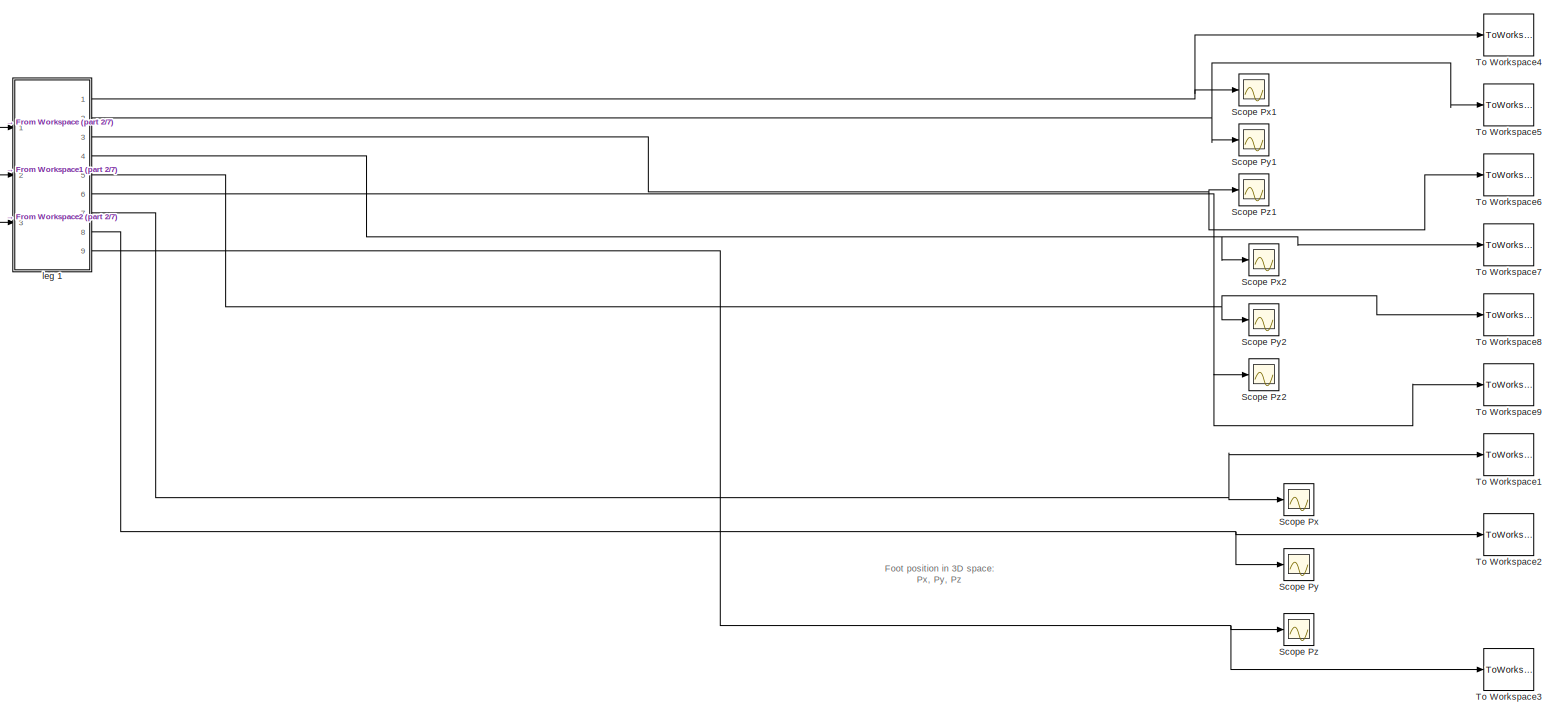
[diagram: root canvas - part 1/7, top right region]
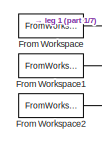
[diagram: root canvas - part 2/7, top left region]
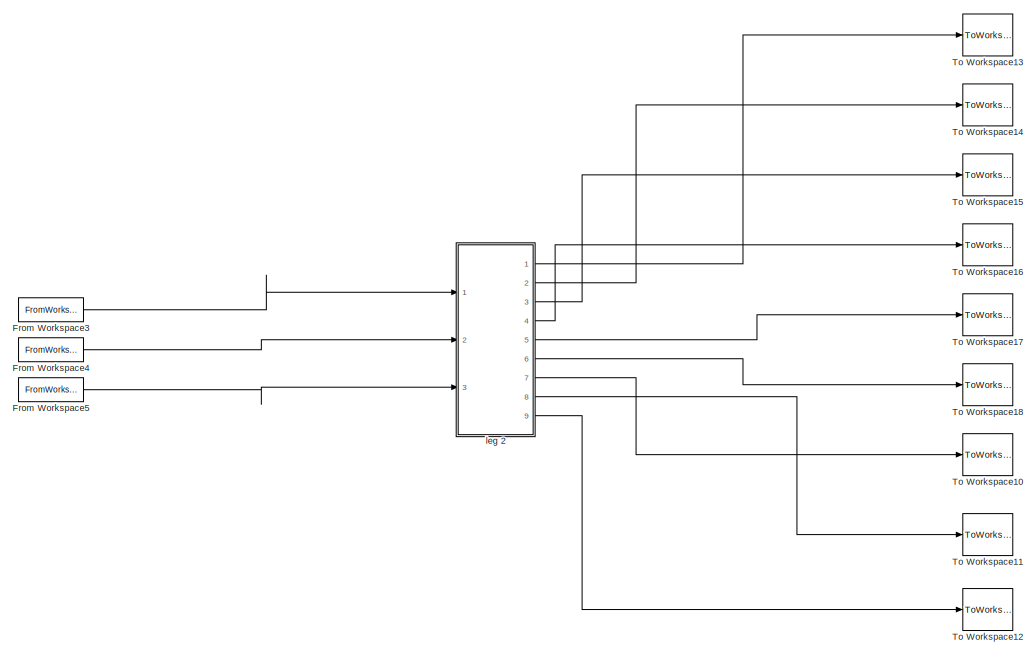
[diagram: root canvas - part 3/7, top center region]
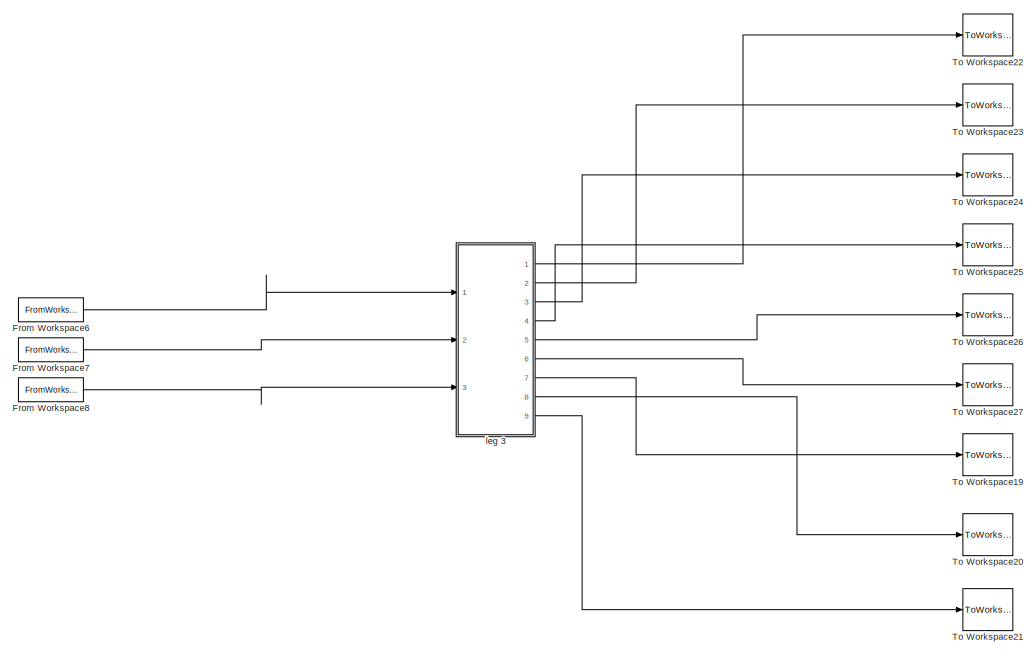
[diagram: root canvas - part 4/7, central region]
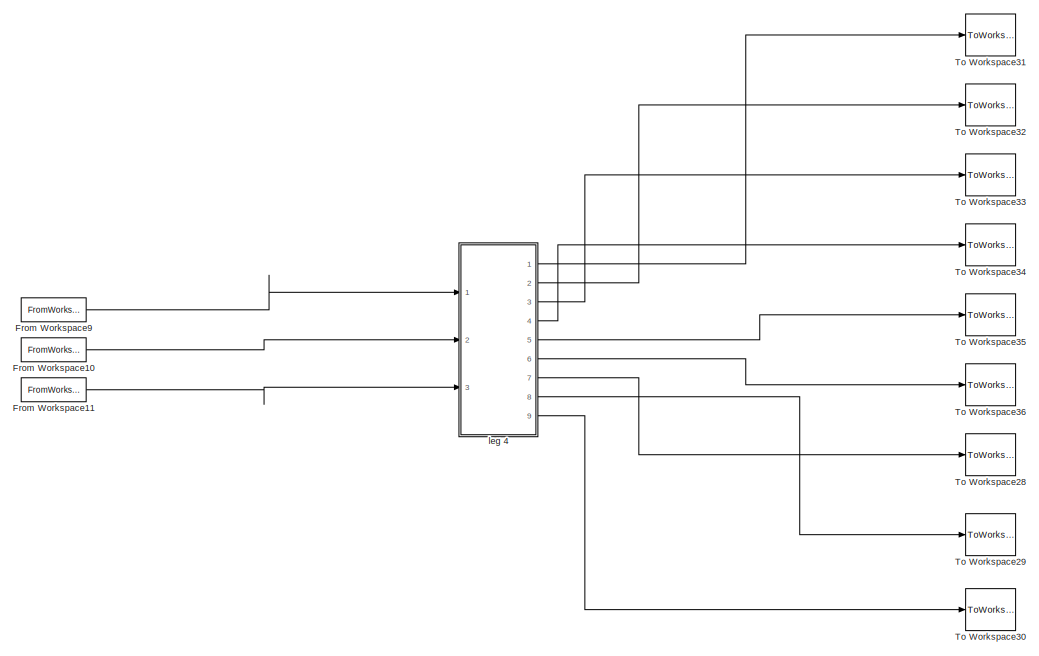
[diagram: root canvas - part 5/7, central region]
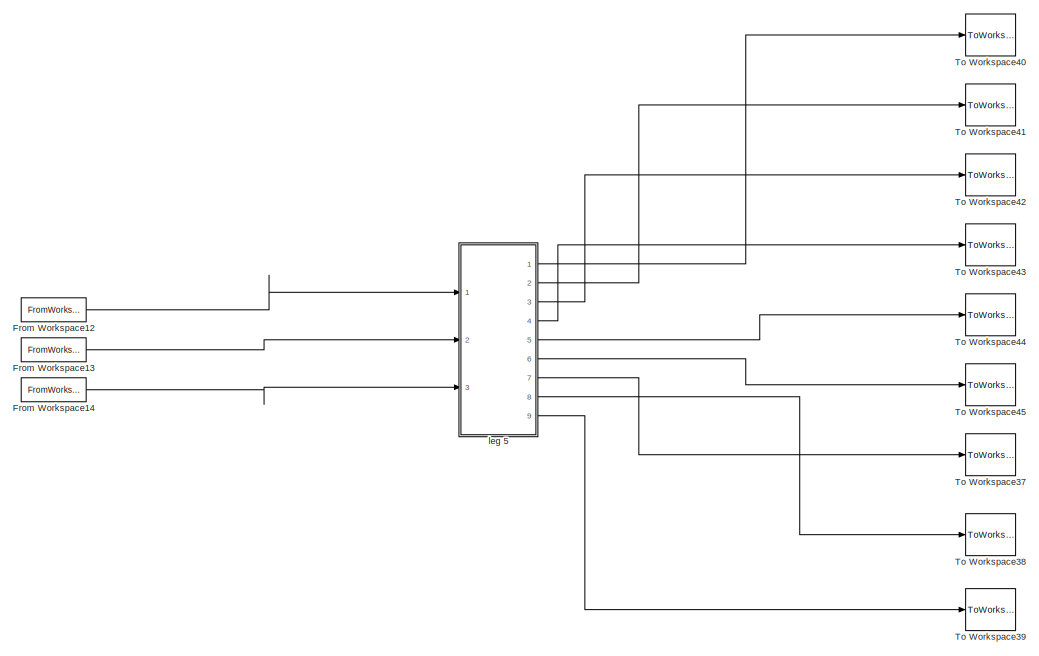
[diagram: root canvas - part 6/7, bottom center region]
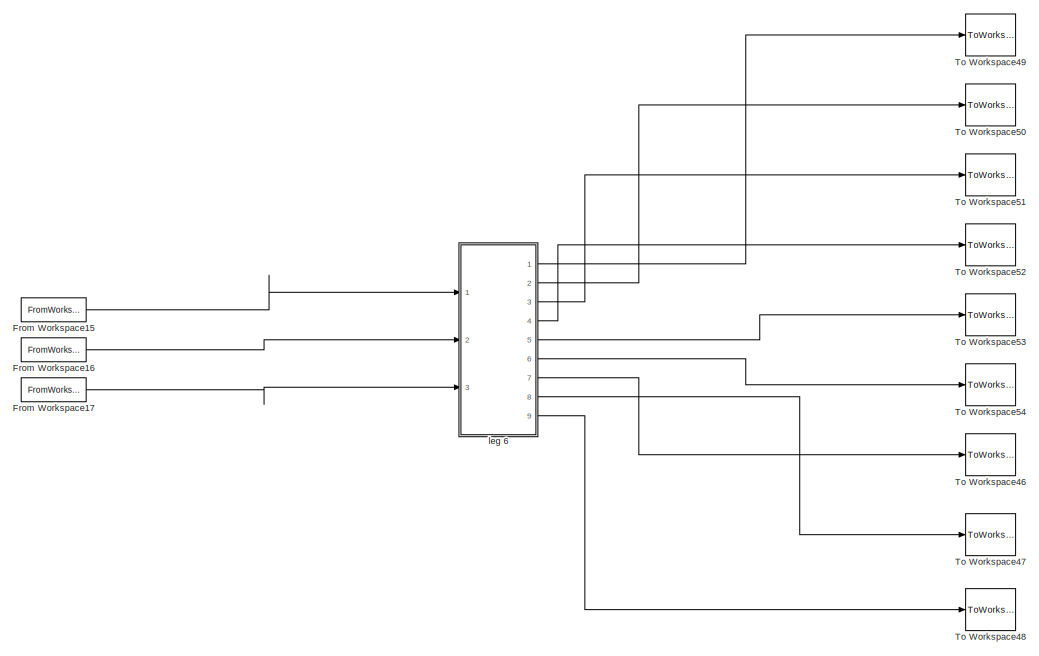
[diagram: root canvas - part 7/7, bottom center region]
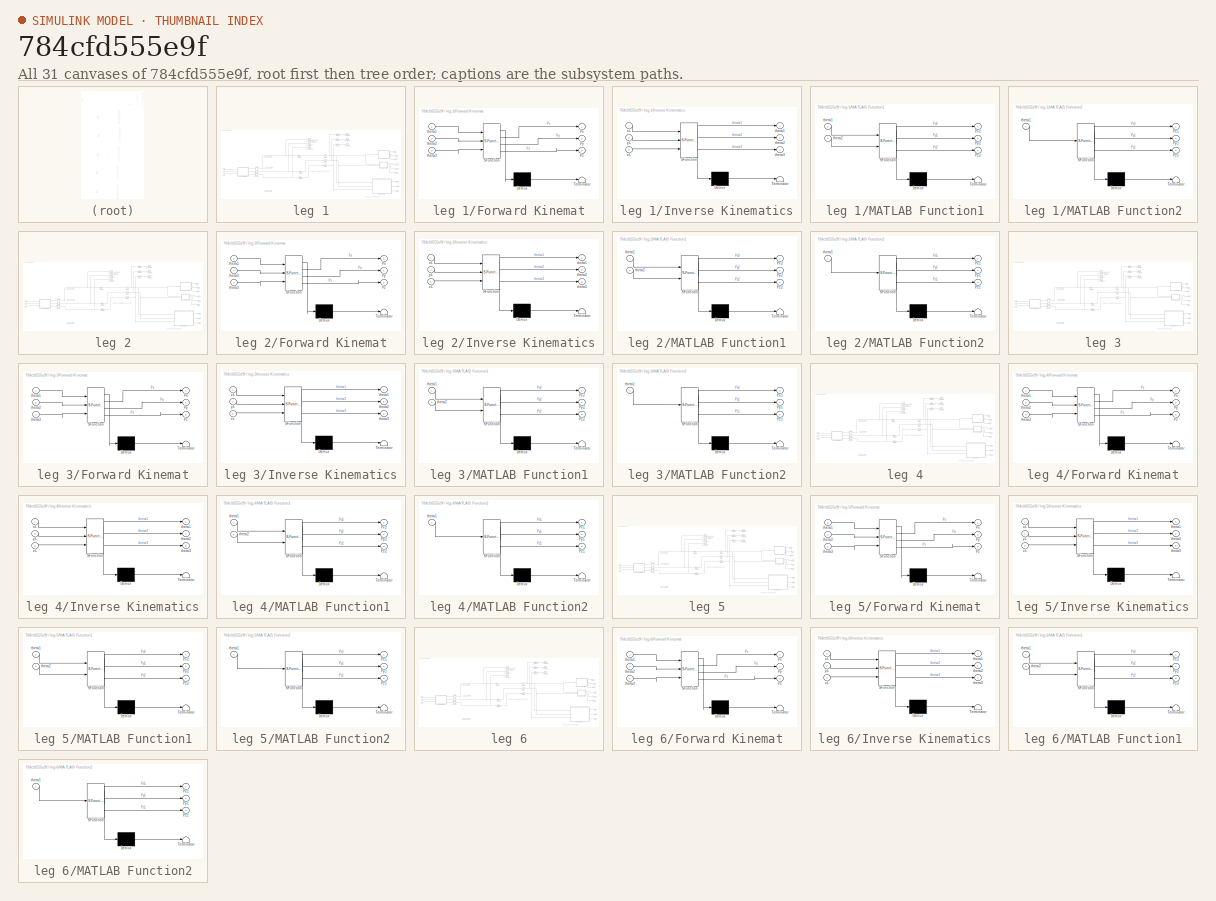
[diagram: thumbnail index - all 31 canvases of the model, root first then tree order]
MODEL slx_784cfd555e9f
KIND model
CONFIG AbsTol = auto
CONFIG EnableMultiTasking = off
CONFIG FixedStep = auto
CONFIG MaxStep = auto
CONFIG MinStep = auto
CONFIG RelTol = 1e-3
CONFIG SampleTimeConstraint = Unconstrained
CONFIG Solver = VariableStepAuto
CONFIG SolverName = VariableStepAuto
CONFIG StartTime = 0.0
CONFIG StopTime = 10.0
BLOCK [FromWorkspace] From Workspace
  SampleTime = 1
  VariableName = xpl1
BLOCK [FromWorkspace] From Workspace1
  SampleTime = 1
  VariableName = ypl1
BLOCK [FromWorkspace] From Workspace10
  SampleTime = 1
  VariableName = ypl4
BLOCK [FromWorkspace] From Workspace11
  SampleTime = 1
  VariableName = zpl4
BLOCK [FromWorkspace] From Workspace12
  SampleTime = 1
  VariableName = xpl5
BLOCK [FromWorkspace] From Workspace13
  SampleTime = 1
  VariableName = ypl5
BLOCK [FromWorkspace] From Workspace14
  SampleTime = 1
  VariableName = zpl5
BLOCK [FromWorkspace] From Workspace15
  SampleTime = 1
  VariableName = xpl6
BLOCK [FromWorkspace] From Workspace16
  SampleTime = 1
  VariableName = ypl6
BLOCK [FromWorkspace] From Workspace17
  SampleTime = 1
  VariableName = zpl6
BLOCK [FromWorkspace] From Workspace2
  SampleTime = 1
  VariableName = zpl1
BLOCK [FromWorkspace] From Workspace3
  SampleTime = 1
  VariableName = xpl2
BLOCK [FromWorkspace] From Workspace4
  SampleTime = 1
  VariableName = ypl2
BLOCK [FromWorkspace] From Workspace5
  SampleTime = 1
  VariableName = zpl2
BLOCK [FromWorkspace] From Workspace6
  SampleTime = 1
  VariableName = xpl3
BLOCK [FromWorkspace] From Workspace7
  SampleTime = 1
  VariableName = ypl3
BLOCK [FromWorkspace] From Workspace8
  SampleTime = 1
  VariableName = zpl3
BLOCK [FromWorkspace] From Workspace9
  SampleTime = 1
  VariableName = xpl4
BLOCK [Scope] Scope Px
  Floating = off
  NumInputPorts = 1
  Ports = [1]
  ScopeSpecificationString = Simulink.scopes.TimeScopeBlockCfg('CurrentConfiguration', extmgr.ConfigurationSet(extmgr.Configuration('Core','General UI',true),extmgr.Configuration('Core','Source UI',true),extmgr.Configuration('Sources','WiredSimulink',true,'DataLoggingVariableName','ScopeData1'),extmgr.Configuration('Visuals','Time Domain',true,'SerializedDisplays',{struct('MinYLimReal','61.96','MaxYLimReal','186.96','YLabelRe...<+1392ch>
BLOCK [Scope] Scope Px1
  Floating = off
  NumInputPorts = 1
  Ports = [1]
  ScopeSpecificationString = Simulink.scopes.TimeScopeBlockCfg('CurrentConfiguration', extmgr.ConfigurationSet(extmgr.Configuration('Core','General UI',true),extmgr.Configuration('Core','Source UI',true),extmgr.Configuration('Sources','WiredSimulink',true,'DataLoggingVariableName','ScopeData9'),extmgr.Configuration('Visuals','Time Domain',true,'SerializedDisplays',{struct('MinYLimReal','43.17','MaxYLimReal','63.17','YLabelRea...<+1361ch>
BLOCK [Scope] Scope Px2
  Floating = off
  NumInputPorts = 1
  Ports = [1]
  ScopeSpecificationString = Simulink.scopes.TimeScopeBlockCfg('CurrentConfiguration', extmgr.ConfigurationSet(extmgr.Configuration('Core','General UI',true),extmgr.Configuration('Core','Source UI',true),extmgr.Configuration('Sources','WiredSimulink',true,'DataLoggingVariableName','ScopeData12'),extmgr.Configuration('Visuals','Time Domain',true,'SerializedDisplays',{struct('MinYLimReal','144.76801','MaxYLimReal','156.19238','...<+1394ch>
BLOCK [Scope] Scope Py
  Floating = off
  NumInputPorts = 1
  Ports = [1]
  ScopeSpecificationString = Simulink.scopes.TimeScopeBlockCfg('CurrentConfiguration', extmgr.ConfigurationSet(extmgr.Configuration('Core','General UI',true),extmgr.Configuration('Core','Source UI',true),extmgr.Configuration('Sources','WiredSimulink',true,'DataLoggingVariableName','ScopeData2'),extmgr.Configuration('Visuals','Time Domain',true,'SerializedDisplays',{struct('MinYLimReal','-0.000000000000008','MaxYLimReal','0.00...<+1486ch>
BLOCK [Scope] Scope Py1
  Floating = off
  NumInputPorts = 1
  Ports = [1]
  ScopeSpecificationString = Simulink.scopes.TimeScopeBlockCfg('CurrentConfiguration', extmgr.ConfigurationSet(extmgr.Configuration('Core','General UI',true),extmgr.Configuration('Core','Source UI',true),extmgr.Configuration('Sources','WiredSimulink',true,'DataLoggingVariableName','ScopeData10'),extmgr.Configuration('Visuals','Time Domain',true,'SerializedDisplays',{struct('MinYLimReal','-0.0000000000000026','MaxYLimReal','0....<+1497ch>
BLOCK [Scope] Scope Py2
  Floating = off
  NumInputPorts = 1
  Ports = [1]
  ScopeSpecificationString = Simulink.scopes.TimeScopeBlockCfg('CurrentConfiguration', extmgr.ConfigurationSet(extmgr.Configuration('Core','General UI',true),extmgr.Configuration('Core','Source UI',true),extmgr.Configuration('Sources','WiredSimulink',true,'DataLoggingVariableName','ScopeData13'),extmgr.Configuration('Visuals','Time Domain',true,'SerializedDisplays',{struct('MinYLimReal','-0.000000000000008','MaxYLimReal','0.0...<+1489ch>
BLOCK [Scope] Scope Pz
  Floating = off
  NumInputPorts = 1
  Ports = [1]
  ScopeSpecificationString = Simulink.scopes.TimeScopeBlockCfg('CurrentConfiguration', extmgr.ConfigurationSet(extmgr.Configuration('Core','General UI',true),extmgr.Configuration('Core','Source UI',true),extmgr.Configuration('Sources','WiredSimulink',true,'DataLoggingVariableName','ScopeData3'),extmgr.Configuration('Visuals','Time Domain',true,'SerializedDisplays',{struct('MinYLimReal','-145.13374','MaxYLimReal','-93.7963','Y...<+1389ch>
BLOCK [Scope] Scope Pz1
  Floating = off
  NumInputPorts = 1
  Ports = [1]
  ScopeSpecificationString = Simulink.scopes.TimeScopeBlockCfg('CurrentConfiguration', extmgr.ConfigurationSet(extmgr.Configuration('Core','General UI',true),extmgr.Configuration('Core','Source UI',true),extmgr.Configuration('Sources','WiredSimulink',true,'DataLoggingVariableName','ScopeData11'),extmgr.Configuration('Visuals','Time Domain',true,'SerializedDisplays',{struct('MinYLimReal','7.00000','MaxYLimReal','9.00000','YLab...<+1378ch>
BLOCK [Scope] Scope Pz2
  Floating = off
  NumInputPorts = 1
  Ports = [1]
  ScopeSpecificationString = Simulink.scopes.TimeScopeBlockCfg('CurrentConfiguration', extmgr.ConfigurationSet(extmgr.Configuration('Core','General UI',true),extmgr.Configuration('Core','Source UI',true),extmgr.Configuration('Sources','WiredSimulink',true,'DataLoggingVariableName','ScopeData14'),extmgr.Configuration('Visuals','Time Domain',true,'SerializedDisplays',{struct('MinYLimReal','-21.00351','MaxYLimReal','58.08389','Y...<+1386ch>
BLOCK [ToWorkspace] To Workspace1
  MaxDataPoints = inf
  Ports = [1]
  SampleTime = -1
  Save2DSignal = 2-D array (concatenate along first dimension)
  VariableName = x103
BLOCK [ToWorkspace] To Workspace10
  MaxDataPoints = inf
  Ports = [1]
  SampleTime = -1
  Save2DSignal = 2-D array (concatenate along first dimension)
  VariableName = x203
BLOCK [ToWorkspace] To Workspace11
  MaxDataPoints = inf
  Ports = [1]
  SampleTime = -1
  Save2DSignal = 2-D array (concatenate along first dimension)
  VariableName = y203
BLOCK [ToWorkspace] To Workspace12
  MaxDataPoints = inf
  Ports = [1]
  SampleTime = -1
  Save2DSignal = 2-D array (concatenate along first dimension)
  VariableName = z203
BLOCK [ToWorkspace] To Workspace13
  MaxDataPoints = inf
  Ports = [1]
  SampleTime = -1
  Save2DSignal = 2-D array (concatenate along first dimension)
  VariableName = x201
BLOCK [ToWorkspace] To Workspace14
  MaxDataPoints = inf
  Ports = [1]
  SampleTime = -1
  Save2DSignal = 2-D array (concatenate along first dimension)
  VariableName = y201
BLOCK [ToWorkspace] To Workspace15
  MaxDataPoints = inf
  Ports = [1]
  SampleTime = -1
  Save2DSignal = 2-D array (concatenate along first dimension)
  VariableName = z201
BLOCK [ToWorkspace] To Workspace16
  MaxDataPoints = inf
  Ports = [1]
  SampleTime = -1
  Save2DSignal = 2-D array (concatenate along first dimension)
  VariableName = x202
BLOCK [ToWorkspace] To Workspace17
  MaxDataPoints = inf
  Ports = [1]
  SampleTime = -1
  Save2DSignal = 2-D array (concatenate along first dimension)
  VariableName = y202
BLOCK [ToWorkspace] To Workspace18
  MaxDataPoints = inf
  Ports = [1]
  SampleTime = -1
  Save2DSignal = 2-D array (concatenate along first dimension)
  VariableName = z202
BLOCK [ToWorkspace] To Workspace19
  MaxDataPoints = inf
  Ports = [1]
  SampleTime = -1
  Save2DSignal = 2-D array (concatenate along first dimension)
  VariableName = x303
BLOCK [ToWorkspace] To Workspace2
  MaxDataPoints = inf
  Ports = [1]
  SampleTime = -1
  Save2DSignal = 2-D array (concatenate along first dimension)
  VariableName = y103
BLOCK [ToWorkspace] To Workspace20
  MaxDataPoints = inf
  Ports = [1]
  SampleTime = -1
  Save2DSignal = 2-D array (concatenate along first dimension)
  VariableName = y303
BLOCK [ToWorkspace] To Workspace21
  MaxDataPoints = inf
  Ports = [1]
  SampleTime = -1
  Save2DSignal = 2-D array (concatenate along first dimension)
  VariableName = z303
BLOCK [ToWorkspace] To Workspace22
  MaxDataPoints = inf
  Ports = [1]
  SampleTime = -1
  Save2DSignal = 2-D array (concatenate along first dimension)
  VariableName = x301
BLOCK [ToWorkspace] To Workspace23
  MaxDataPoints = inf
  Ports = [1]
  SampleTime = -1
  Save2DSignal = 2-D array (concatenate along first dimension)
  VariableName = y301
BLOCK [ToWorkspace] To Workspace24
  MaxDataPoints = inf
  Ports = [1]
  SampleTime = -1
  Save2DSignal = 2-D array (concatenate along first dimension)
  VariableName = z301
BLOCK [ToWorkspace] To Workspace25
  MaxDataPoints = inf
  Ports = [1]
  SampleTime = -1
  Save2DSignal = 2-D array (concatenate along first dimension)
  VariableName = x302
BLOCK [ToWorkspace] To Workspace26
  MaxDataPoints = inf
  Ports = [1]
  SampleTime = -1
  Save2DSignal = 2-D array (concatenate along first dimension)
  VariableName = y302
BLOCK [ToWorkspace] To Workspace27
  MaxDataPoints = inf
  Ports = [1]
  SampleTime = -1
  Save2DSignal = 2-D array (concatenate along first dimension)
  VariableName = z302
BLOCK [ToWorkspace] To Workspace28
  MaxDataPoints = inf
  Ports = [1]
  SampleTime = -1
  Save2DSignal = 2-D array (concatenate along first dimension)
  VariableName = x403
BLOCK [ToWorkspace] To Workspace29
  MaxDataPoints = inf
  Ports = [1]
  SampleTime = -1
  Save2DSignal = 2-D array (concatenate along first dimension)
  VariableName = y403
BLOCK [ToWorkspace] To Workspace3
  MaxDataPoints = inf
  Ports = [1]
  SampleTime = -1
  Save2DSignal = 2-D array (concatenate along first dimension)
  VariableName = z103
BLOCK [ToWorkspace] To Workspace30
  MaxDataPoints = inf
  Ports = [1]
  SampleTime = -1
  Save2DSignal = 2-D array (concatenate along first dimension)
  VariableName = z403
BLOCK [ToWorkspace] To Workspace31
  MaxDataPoints = inf
  Ports = [1]
  SampleTime = -1
  Save2DSignal = 2-D array (concatenate along first dimension)
  VariableName = x401
BLOCK [ToWorkspace] To Workspace32
  MaxDataPoints = inf
  Ports = [1]
  SampleTime = -1
  Save2DSignal = 2-D array (concatenate along first dimension)
  VariableName = y401
BLOCK [ToWorkspace] To Workspace33
  MaxDataPoints = inf
  Ports = [1]
  SampleTime = -1
  Save2DSignal = 2-D array (concatenate along first dimension)
  VariableName = z401
BLOCK [ToWorkspace] To Workspace34
  MaxDataPoints = inf
  Ports = [1]
  SampleTime = -1
  Save2DSignal = 2-D array (concatenate along first dimension)
  VariableName = x402
BLOCK [ToWorkspace] To Workspace35
  MaxDataPoints = inf
  Ports = [1]
  SampleTime = -1
  Save2DSignal = 2-D array (concatenate along first dimension)
  VariableName = y402
BLOCK [ToWorkspace] To Workspace36
  MaxDataPoints = inf
  Ports = [1]
  SampleTime = -1
  Save2DSignal = 2-D array (concatenate along first dimension)
  VariableName = z402
BLOCK [ToWorkspace] To Workspace37
  MaxDataPoints = inf
  Ports = [1]
  SampleTime = -1
  Save2DSignal = 2-D array (concatenate along first dimension)
  VariableName = x503
BLOCK [ToWorkspace] To Workspace38
  MaxDataPoints = inf
  Ports = [1]
  SampleTime = -1
  Save2DSignal = 2-D array (concatenate along first dimension)
  VariableName = y503
BLOCK [ToWorkspace] To Workspace39
  MaxDataPoints = inf
  Ports = [1]
  SampleTime = -1
  Save2DSignal = 2-D array (concatenate along first dimension)
  VariableName = z503
BLOCK [ToWorkspace] To Workspace4
  MaxDataPoints = inf
  Ports = [1]
  SampleTime = -1
  Save2DSignal = 2-D array (concatenate along first dimension)
  VariableName = x101
BLOCK [ToWorkspace] To Workspace40
  MaxDataPoints = inf
  Ports = [1]
  SampleTime = -1
  Save2DSignal = 2-D array (concatenate along first dimension)
  VariableName = x501
BLOCK [ToWorkspace] To Workspace41
  MaxDataPoints = inf
  Ports = [1]
  SampleTime = -1
  Save2DSignal = 2-D array (concatenate along first dimension)
  VariableName = y501
BLOCK [ToWorkspace] To Workspace42
  MaxDataPoints = inf
  Ports = [1]
  SampleTime = -1
  Save2DSignal = 2-D array (concatenate along first dimension)
  VariableName = z501
BLOCK [ToWorkspace] To Workspace43
  MaxDataPoints = inf
  Ports = [1]
  SampleTime = -1
  Save2DSignal = 2-D array (concatenate along first dimension)
  VariableName = x502
BLOCK [ToWorkspace] To Workspace44
  MaxDataPoints = inf
  Ports = [1]
  SampleTime = -1
  Save2DSignal = 2-D array (concatenate along first dimension)
  VariableName = y502
BLOCK [ToWorkspace] To Workspace45
  MaxDataPoints = inf
  Ports = [1]
  SampleTime = -1
  Save2DSignal = 2-D array (concatenate along first dimension)
  VariableName = z502
BLOCK [ToWorkspace] To Workspace46
  MaxDataPoints = inf
  Ports = [1]
  SampleTime = -1
  Save2DSignal = 2-D array (concatenate along first dimension)
  VariableName = x603
BLOCK [ToWorkspace] To Workspace47
  MaxDataPoints = inf
  Ports = [1]
  SampleTime = -1
  Save2DSignal = 2-D array (concatenate along first dimension)
  VariableName = y603
BLOCK [ToWorkspace] To Workspace48
  MaxDataPoints = inf
  Ports = [1]
  SampleTime = -1
  Save2DSignal = 2-D array (concatenate along first dimension)
  VariableName = z603
BLOCK [ToWorkspace] To Workspace49
  MaxDataPoints = inf
  Ports = [1]
  SampleTime = -1
  Save2DSignal = 2-D array (concatenate along first dimension)
  VariableName = x601
BLOCK [ToWorkspace] To Workspace5
  MaxDataPoints = inf
  Ports = [1]
  SampleTime = -1
  Save2DSignal = 2-D array (concatenate along first dimension)
  VariableName = y101
BLOCK [ToWorkspace] To Workspace50
  MaxDataPoints = inf
  Ports = [1]
  SampleTime = -1
  Save2DSignal = 2-D array (concatenate along first dimension)
  VariableName = y601
BLOCK [ToWorkspace] To Workspace51
  MaxDataPoints = inf
  Ports = [1]
  SampleTime = -1
  Save2DSignal = 2-D array (concatenate along first dimension)
  VariableName = z601
BLOCK [ToWorkspace] To Workspace52
  MaxDataPoints = inf
  Ports = [1]
  SampleTime = -1
  Save2DSignal = 2-D array (concatenate along first dimension)
  VariableName = x602
BLOCK [ToWorkspace] To Workspace53
  MaxDataPoints = inf
  Ports = [1]
  SampleTime = -1
  Save2DSignal = 2-D array (concatenate along first dimension)
  VariableName = y602
BLOCK [ToWorkspace] To Workspace54
  MaxDataPoints = inf
  Ports = [1]
  SampleTime = -1
  Save2DSignal = 2-D array (concatenate along first dimension)
  VariableName = z602
BLOCK [ToWorkspace] To Workspace6
  MaxDataPoints = inf
  Ports = [1]
  SampleTime = -1
  Save2DSignal = 2-D array (concatenate along first dimension)
  VariableName = z101
BLOCK [ToWorkspace] To Workspace7
  MaxDataPoints = inf
  Ports = [1]
  SampleTime = -1
  Save2DSignal = 2-D array (concatenate along first dimension)
  VariableName = x102
BLOCK [ToWorkspace] To Workspace8
  MaxDataPoints = inf
  Ports = [1]
  SampleTime = -1
  Save2DSignal = 2-D array (concatenate along first dimension)
  VariableName = y102
BLOCK [ToWorkspace] To Workspace9
  MaxDataPoints = inf
  Ports = [1]
  SampleTime = -1
  Save2DSignal = 2-D array (concatenate along first dimension)
  VariableName = z102
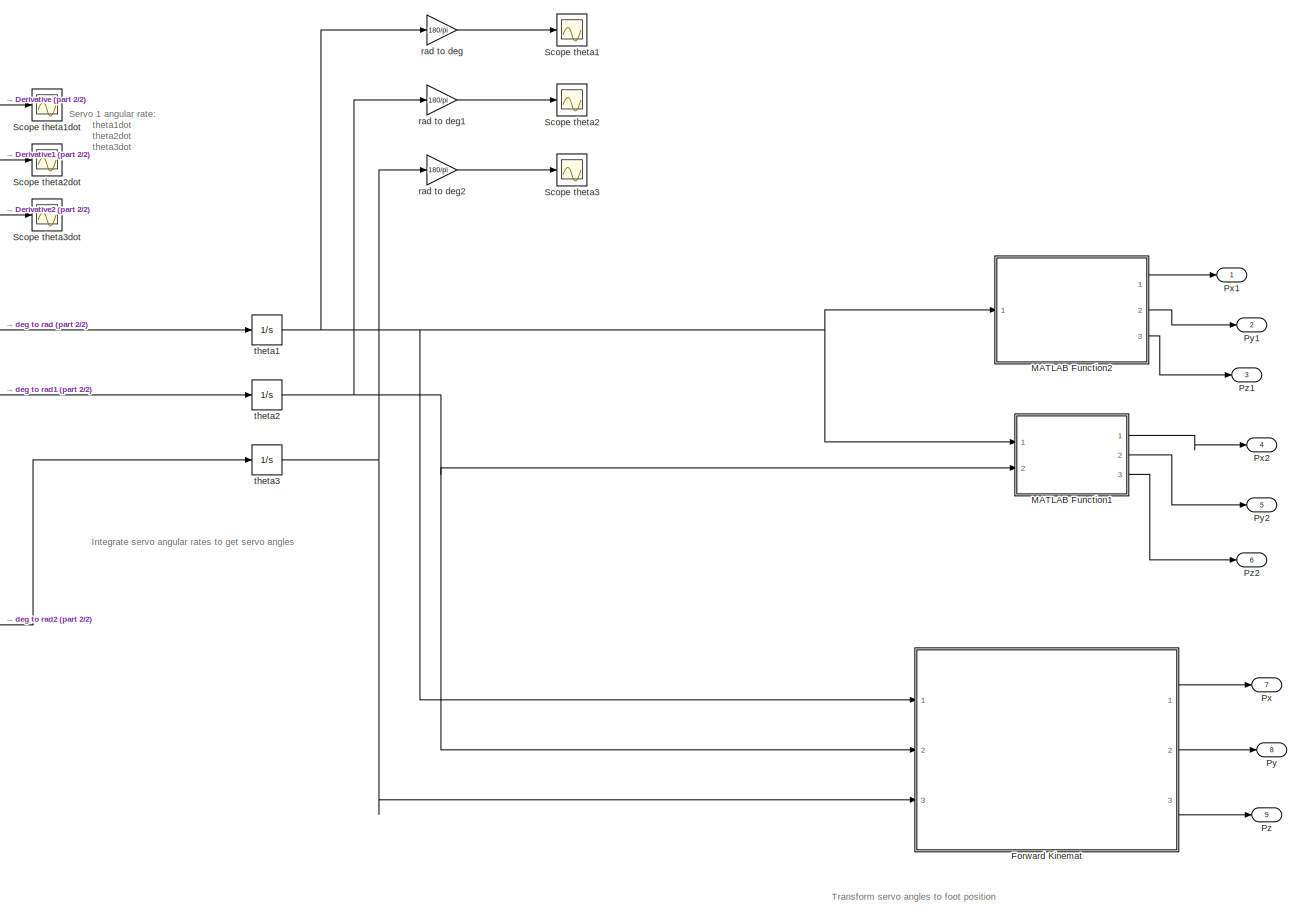
[diagram: leg 1 - part 1/2, right side, full height]
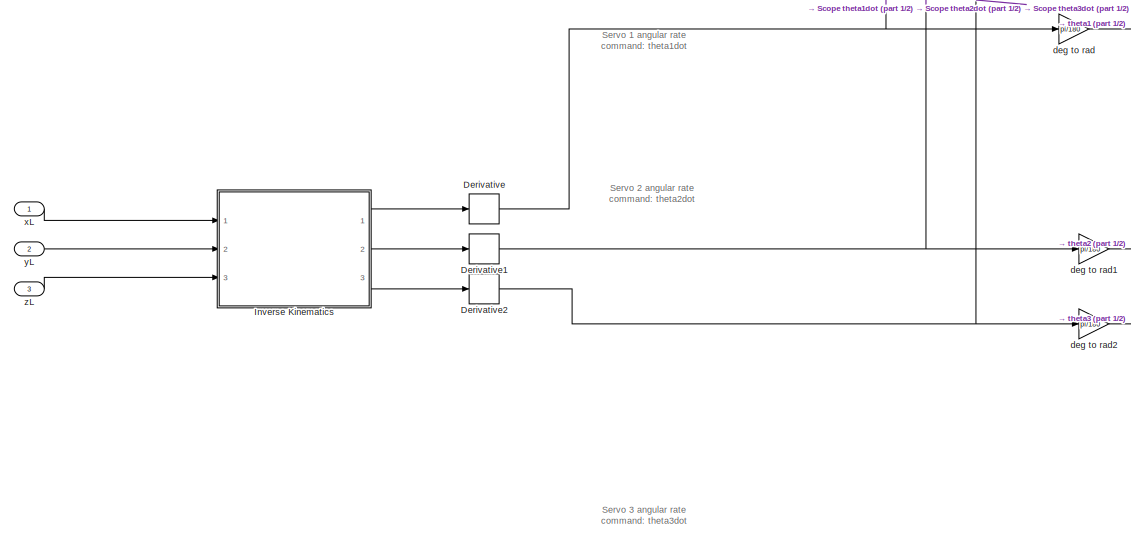
[diagram: leg 1 - part 2/2, middle left region]
BLOCK [SubSystem] leg 1
  Ports = [3, 9]
  RequestExecContextInheritance = off
BLOCK [Derivative] leg 1/Derivative
  Commented = through
BLOCK [Derivative] leg 1/Derivative1
  Commented = through
BLOCK [Derivative] leg 1/Derivative2
  Commented = through
BLOCK [SubSystem] leg 1/Forward Kinemat
  ErrorFcn = Stateflow.Translate.translate
  PermitHierarchicalResolution = ExplicitOnly
  Ports = [3, 3]
  RequestExecContextInheritance = off
  SFBlockType = MATLAB Function
  TreatAsAtomicUnit = on
BLOCK [Demux] leg 1/Forward Kinemat/ Demux 
  Outputs = 1
  Ports = [1, 1]
BLOCK [S-Function] leg 1/Forward Kinemat/ SFunction 
  EnableBusSupport = on
  FunctionName = sf_sfun
  PortCounts = [3 4]
  Ports = [3, 4]
  SFcnIsStateOwnerBlock = off
  SFunctionDeploymentMode = off
  Tag = Stateflow S-Function 2
BLOCK [Terminator] leg 1/Forward Kinemat/ Terminator 
BLOCK [Outport] leg 1/Forward Kinemat/Px
BLOCK [Outport] leg 1/Forward Kinemat/Py
  Port = 2
BLOCK [Outport] leg 1/Forward Kinemat/Pz
  Port = 3
BLOCK [Inport] leg 1/Forward Kinemat/theta1
BLOCK [Inport] leg 1/Forward Kinemat/theta2
  Port = 2
BLOCK [Inport] leg 1/Forward Kinemat/theta3
  Port = 3
BLOCK [SubSystem] leg 1/Inverse Kinematics
  ErrorFcn = Stateflow.Translate.translate
  PermitHierarchicalResolution = ExplicitOnly
  Ports = [3, 3]
  RequestExecContextInheritance = off
  SFBlockType = MATLAB Function
  TreatAsAtomicUnit = on
BLOCK [Demux] leg 1/Inverse Kinematics/ Demux 
  Outputs = 1
  Ports = [1, 1]
BLOCK [S-Function] leg 1/Inverse Kinematics/ SFunction 
  EnableBusSupport = on
  FunctionName = sf_sfun
  PortCounts = [3 4]
  Ports = [3, 4]
  SFcnIsStateOwnerBlock = off
  SFunctionDeploymentMode = off
  Tag = Stateflow S-Function 4
BLOCK [Terminator] leg 1/Inverse Kinematics/ Terminator 
BLOCK [Outport] leg 1/Inverse Kinematics/theta1
BLOCK [Outport] leg 1/Inverse Kinematics/theta2
  Port = 2
BLOCK [Outport] leg 1/Inverse Kinematics/theta3
  Port = 3
BLOCK [Inport] leg 1/Inverse Kinematics/xL
BLOCK [Inport] leg 1/Inverse Kinematics/yL
  Port = 2
BLOCK [Inport] leg 1/Inverse Kinematics/zL
  Port = 3
BLOCK [SubSystem] leg 1/MATLAB Function1
  ErrorFcn = Stateflow.Translate.translate
  PermitHierarchicalResolution = ExplicitOnly
  Ports = [2, 3]
  RequestExecContextInheritance = off
  SFBlockType = MATLAB Function
  TreatAsAtomicUnit = on
BLOCK [Demux] leg 1/MATLAB Function1/ Demux 
  Outputs = 1
  Ports = [1, 1]
BLOCK [S-Function] leg 1/MATLAB Function1/ SFunction 
  EnableBusSupport = on
  FunctionName = sf_sfun
  PortCounts = [2 4]
  Ports = [2, 4]
  SFcnIsStateOwnerBlock = off
  SFunctionDeploymentMode = off
  Tag = Stateflow S-Function 1
BLOCK [Terminator] leg 1/MATLAB Function1/ Terminator 
BLOCK [Outport] leg 1/MATLAB Function1/Px2
BLOCK [Outport] leg 1/MATLAB Function1/Py2
  Port = 2
BLOCK [Outport] leg 1/MATLAB Function1/Pz2
  Port = 3
BLOCK [Inport] leg 1/MATLAB Function1/theta1
BLOCK [Inport] leg 1/MATLAB Function1/theta2
  Port = 2
BLOCK [SubSystem] leg 1/MATLAB Function2
  ErrorFcn = Stateflow.Translate.translate
  PermitHierarchicalResolution = ExplicitOnly
  Ports = [1, 3]
  RequestExecContextInheritance = off
  SFBlockType = MATLAB Function
  TreatAsAtomicUnit = on
BLOCK [Demux] leg 1/MATLAB Function2/ Demux 
  Outputs = 1
  Ports = [1, 1]
BLOCK [S-Function] leg 1/MATLAB Function2/ SFunction 
  EnableBusSupport = on
  FunctionName = sf_sfun
  PortCounts = [1 4]
  Ports = [1, 4]
  SFcnIsStateOwnerBlock = off
  SFunctionDeploymentMode = off
  Tag = Stateflow S-Function 3
BLOCK [Terminator] leg 1/MATLAB Function2/ Terminator 
BLOCK [Outport] leg 1/MATLAB Function2/Px1
BLOCK [Outport] leg 1/MATLAB Function2/Py1
  Port = 2
BLOCK [Outport] leg 1/MATLAB Function2/Pz1
  Port = 3
BLOCK [Inport] leg 1/MATLAB Function2/theta1
BLOCK [Outport] leg 1/Px
  Port = 7
BLOCK [Outport] leg 1/Px1
BLOCK [Outport] leg 1/Px2
  Port = 4
BLOCK [Outport] leg 1/Py
  Port = 8
BLOCK [Outport] leg 1/Py1
  Port = 2
BLOCK [Outport] leg 1/Py2
  Port = 5
BLOCK [Outport] leg 1/Pz
  Port = 9
BLOCK [Outport] leg 1/Pz1
  Port = 3
BLOCK [Outport] leg 1/Pz2
  Port = 6
BLOCK [Scope] leg 1/Scope theta1
  Floating = off
  NumInputPorts = 1
  Ports = [1]
  ScopeSpecificationString = Simulink.scopes.TimeScopeBlockCfg('CurrentConfiguration', extmgr.ConfigurationSet(extmgr.Configuration('Core','General UI',true),extmgr.Configuration('Core','Source UI',true),extmgr.Configuration('Sources','WiredSimulink',true,'DataLoggingVariableName','ScopeData4'),extmgr.Configuration('Visuals','Time Domain',true,'SerializedDisplays',{struct('MinYLimReal','-0.0000000000000029','MaxYLimReal','0.0...<+1486ch>  <repeated x6 — deduplicated; at blocks: Scope theta1>
BLOCK [Scope] leg 1/Scope theta1dot
  Floating = off
  NumInputPorts = 1
  Ports = [1]
  ScopeSpecificationString = Simulink.scopes.TimeScopeBlockCfg('CurrentConfiguration', extmgr.ConfigurationSet(extmgr.Configuration('Core','General UI',true),extmgr.Configuration('Core','Source UI',true),extmgr.Configuration('Sources','WiredSimulink',true,'DataLoggingVariableName','ScopeData5'),extmgr.Configuration('Visuals','Time Domain',true,'SerializedDisplays',{struct('MinYLimReal','-0.00000000000000005','MaxYLimReal','0....<+1491ch>  <repeated x6 — deduplicated; at blocks: Scope theta1dot>
BLOCK [Scope] leg 1/Scope theta2
  Floating = off
  NumInputPorts = 1
  Ports = [1]
  ScopeSpecificationString = Simulink.scopes.TimeScopeBlockCfg('CurrentConfiguration', extmgr.ConfigurationSet(extmgr.Configuration('Core','General UI',true),extmgr.Configuration('Core','Source UI',true),extmgr.Configuration('Sources','WiredSimulink',true,'DataLoggingVariableName','ScopeData6'),extmgr.Configuration('Visuals','Time Domain',true),extmgr.Configuration('Tools','Plot Navigation',true),extmgr.Configuration('Tools',...<+40ch>  <repeated x6 — deduplicated; at blocks: Scope theta2>
BLOCK [Scope] leg 1/Scope theta2dot
  Floating = off
  NumInputPorts = 1
  Ports = [1]
  ScopeSpecificationString = Simulink.scopes.TimeScopeBlockCfg('CurrentConfiguration', extmgr.ConfigurationSet(extmgr.Configuration('Core','General UI',true),extmgr.Configuration('Core','Source UI',true),extmgr.Configuration('Sources','WiredSimulink',true,'DataLoggingVariableName','ScopeData7'),extmgr.Configuration('Visuals','Time Domain',true,'SerializedDisplays',{struct('MinYLimReal','-0.28799','MaxYLimReal','0.50623','YLab...<+1370ch>  <repeated x6 — deduplicated; at blocks: Scope theta2dot>
BLOCK [Scope] leg 1/Scope theta3
  Floating = off
  NumInputPorts = 1
  Ports = [1]
  ScopeSpecificationString = Simulink.scopes.TimeScopeBlockCfg('CurrentConfiguration', extmgr.ConfigurationSet(extmgr.Configuration('Core','General UI',true),extmgr.Configuration('Core','Source UI',true),extmgr.Configuration('Sources','WiredSimulink',true,'DataLoggingVariableName','ScopeData8'),extmgr.Configuration('Visuals','Time Domain',true),extmgr.Configuration('Tools','Plot Navigation',true),extmgr.Configuration('Tools',...<+40ch>  <repeated x6 — deduplicated; at blocks: Scope theta3>
BLOCK [Scope] leg 1/Scope theta3dot
  Floating = off
  NumInputPorts = 1
  Ports = [1]
  ScopeSpecificationString = Simulink.scopes.TimeScopeBlockCfg('CurrentConfiguration', extmgr.ConfigurationSet(extmgr.Configuration('Core','General UI',true),extmgr.Configuration('Core','Source UI',true),extmgr.Configuration('Sources','WiredSimulink',true),extmgr.Configuration('Visuals','Time Domain',true,'SerializedDisplays',{struct('MinYLimReal','-2.31374','MaxYLimReal','-1.34207','YLabelReal','','MinYLimMag','0.00000','Max...<+1333ch>  <repeated x6 — deduplicated; at blocks: Scope theta3dot>
BLOCK [Gain] leg 1/deg to rad
  Commented = through
  Gain = pi/180
BLOCK [Gain] leg 1/deg to rad1
  Commented = through
  Gain = pi/180
BLOCK [Gain] leg 1/deg to rad2
  Commented = through
  Gain = pi/180
BLOCK [Gain] leg 1/rad to deg
  Gain = 180/pi
BLOCK [Gain] leg 1/rad to deg1
  Gain = 180/pi
BLOCK [Gain] leg 1/rad to deg2
  Gain = 180/pi
BLOCK [Integrator] leg 1/theta1
  Commented = through
  Ports = [1, 1]
BLOCK [Integrator] leg 1/theta2
  Commented = through
  Ports = [1, 1]
BLOCK [Integrator] leg 1/theta3
  Commented = through
  Ports = [1, 1]
BLOCK [Inport] leg 1/xL
BLOCK [Inport] leg 1/yL
  Port = 2
BLOCK [Inport] leg 1/zL
  Port = 3
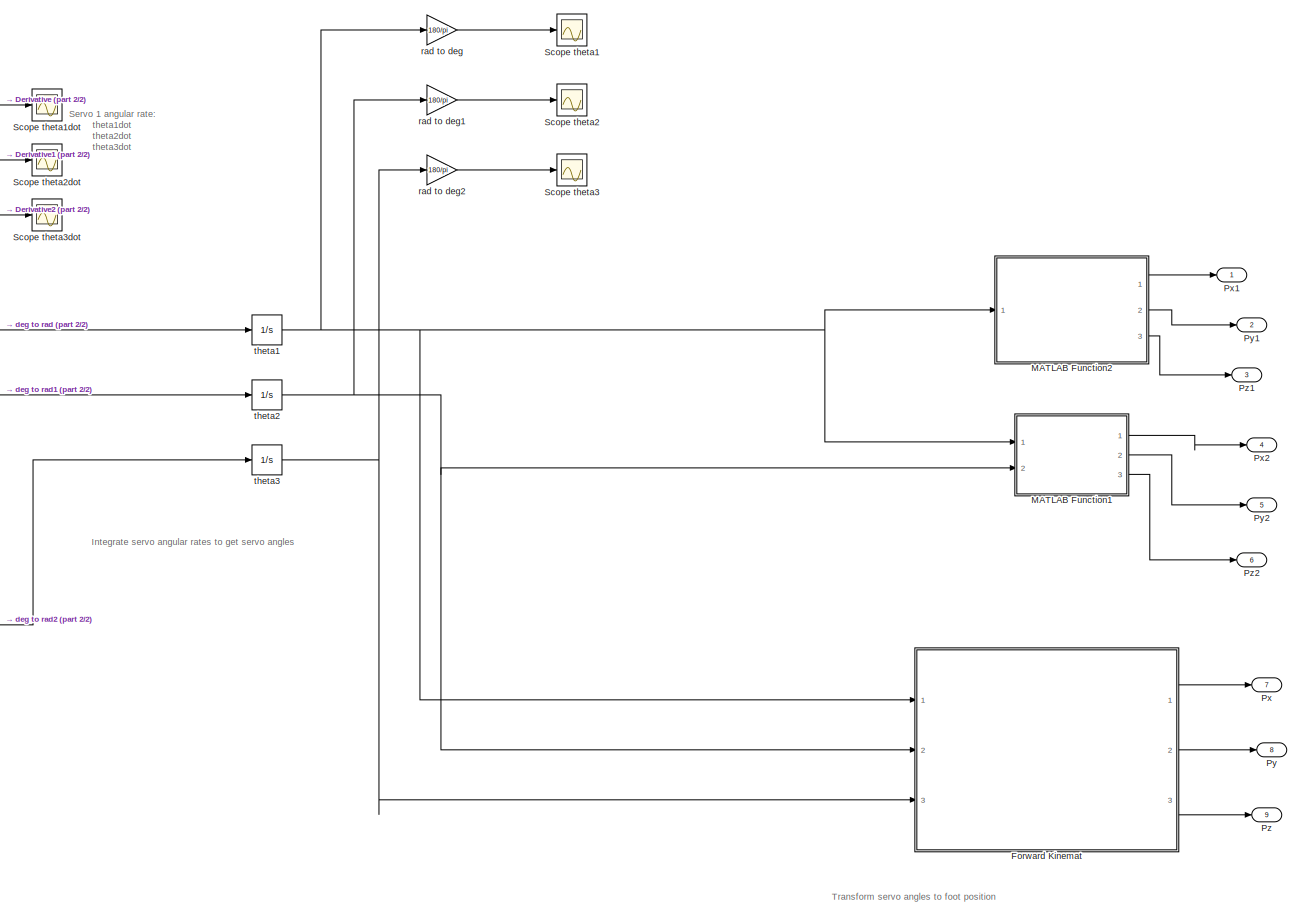
[diagram: leg 2 - part 1/2, right side, full height]
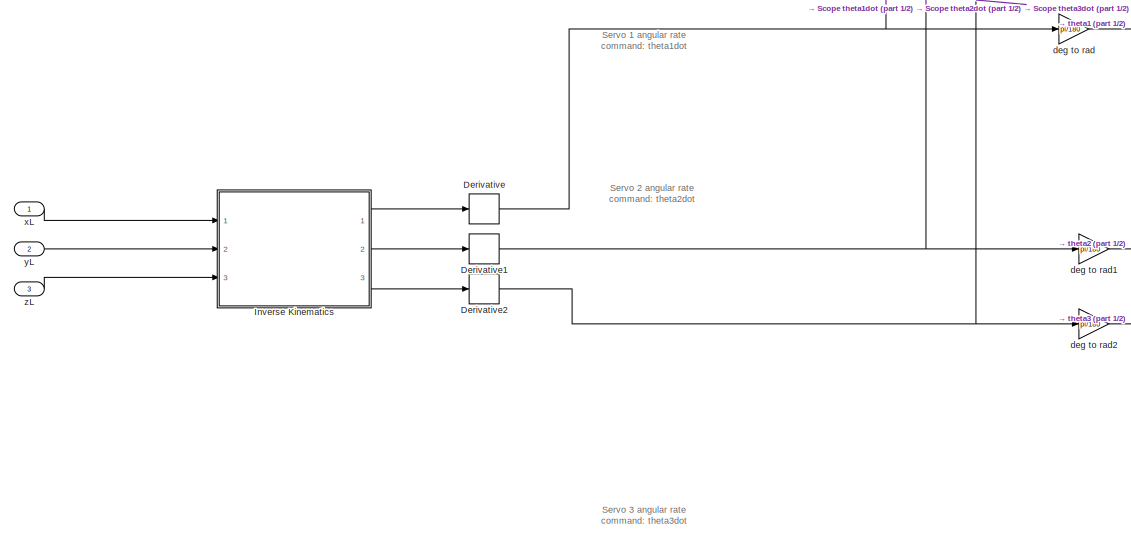
[diagram: leg 2 - part 2/2, middle left region]
BLOCK [SubSystem] leg 2
  Ports = [3, 9]
  RequestExecContextInheritance = off
BLOCK [Derivative] leg 2/Derivative
  Commented = through
BLOCK [Derivative] leg 2/Derivative1
  Commented = through
BLOCK [Derivative] leg 2/Derivative2
  Commented = through
BLOCK [SubSystem] leg 2/Forward Kinemat
  ErrorFcn = Stateflow.Translate.translate
  PermitHierarchicalResolution = ExplicitOnly
  Ports = [3, 3]
  RequestExecContextInheritance = off
  SFBlockType = MATLAB Function
  TreatAsAtomicUnit = on
BLOCK [Demux] leg 2/Forward Kinemat/ Demux 
  Outputs = 1
  Ports = [1, 1]
BLOCK [S-Function] leg 2/Forward Kinemat/ SFunction 
  EnableBusSupport = on
  FunctionName = sf_sfun
  PortCounts = [3 4]
  Ports = [3, 4]
  SFcnIsStateOwnerBlock = off
  SFunctionDeploymentMode = off
  Tag = Stateflow S-Function 5
BLOCK [Terminator] leg 2/Forward Kinemat/ Terminator 
BLOCK [Outport] leg 2/Forward Kinemat/Px
BLOCK [Outport] leg 2/Forward Kinemat/Py
  Port = 2
BLOCK [Outport] leg 2/Forward Kinemat/Pz
  Port = 3
BLOCK [Inport] leg 2/Forward Kinemat/theta1
BLOCK [Inport] leg 2/Forward Kinemat/theta2
  Port = 2
BLOCK [Inport] leg 2/Forward Kinemat/theta3
  Port = 3
BLOCK [SubSystem] leg 2/Inverse Kinematics
  ErrorFcn = Stateflow.Translate.translate
  PermitHierarchicalResolution = ExplicitOnly
  Ports = [3, 3]
  RequestExecContextInheritance = off
  SFBlockType = MATLAB Function
  TreatAsAtomicUnit = on
BLOCK [Demux] leg 2/Inverse Kinematics/ Demux 
  Outputs = 1
  Ports = [1, 1]
BLOCK [S-Function] leg 2/Inverse Kinematics/ SFunction 
  EnableBusSupport = on
  FunctionName = sf_sfun
  PortCounts = [3 4]
  Ports = [3, 4]
  SFcnIsStateOwnerBlock = off
  SFunctionDeploymentMode = off
  Tag = Stateflow S-Function 6
BLOCK [Terminator] leg 2/Inverse Kinematics/ Terminator 
BLOCK [Outport] leg 2/Inverse Kinematics/theta1
BLOCK [Outport] leg 2/Inverse Kinematics/theta2
  Port = 2
BLOCK [Outport] leg 2/Inverse Kinematics/theta3
  Port = 3
BLOCK [Inport] leg 2/Inverse Kinematics/xL
BLOCK [Inport] leg 2/Inverse Kinematics/yL
  Port = 2
BLOCK [Inport] leg 2/Inverse Kinematics/zL
  Port = 3
BLOCK [SubSystem] leg 2/MATLAB Function1
  ErrorFcn = Stateflow.Translate.translate
  PermitHierarchicalResolution = ExplicitOnly
  Ports = [2, 3]
  RequestExecContextInheritance = off
  SFBlockType = MATLAB Function
  TreatAsAtomicUnit = on
BLOCK [Demux] leg 2/MATLAB Function1/ Demux 
  Outputs = 1
  Ports = [1, 1]
BLOCK [S-Function] leg 2/MATLAB Function1/ SFunction 
  EnableBusSupport = on
  FunctionName = sf_sfun
  PortCounts = [2 4]
  Ports = [2, 4]
  SFcnIsStateOwnerBlock = off
  SFunctionDeploymentMode = off
  Tag = Stateflow S-Function 7
BLOCK [Terminator] leg 2/MATLAB Function1/ Terminator 
BLOCK [Outport] leg 2/MATLAB Function1/Px2
BLOCK [Outport] leg 2/MATLAB Function1/Py2
  Port = 2
BLOCK [Outport] leg 2/MATLAB Function1/Pz2
  Port = 3
BLOCK [Inport] leg 2/MATLAB Function1/theta1
BLOCK [Inport] leg 2/MATLAB Function1/theta2
  Port = 2
BLOCK [SubSystem] leg 2/MATLAB Function2
  ErrorFcn = Stateflow.Translate.translate
  PermitHierarchicalResolution = ExplicitOnly
  Ports = [1, 3]
  RequestExecContextInheritance = off
  SFBlockType = MATLAB Function
  TreatAsAtomicUnit = on
BLOCK [Demux] leg 2/MATLAB Function2/ Demux 
  Outputs = 1
  Ports = [1, 1]
BLOCK [S-Function] leg 2/MATLAB Function2/ SFunction 
  EnableBusSupport = on
  FunctionName = sf_sfun
  PortCounts = [1 4]
  Ports = [1, 4]
  SFcnIsStateOwnerBlock = off
  SFunctionDeploymentMode = off
  Tag = Stateflow S-Function 8
BLOCK [Terminator] leg 2/MATLAB Function2/ Terminator 
BLOCK [Outport] leg 2/MATLAB Function2/Px1
BLOCK [Outport] leg 2/MATLAB Function2/Py1
  Port = 2
BLOCK [Outport] leg 2/MATLAB Function2/Pz1
  Port = 3
BLOCK [Inport] leg 2/MATLAB Function2/theta1
BLOCK [Outport] leg 2/Px
  Port = 7
BLOCK [Outport] leg 2/Px1
BLOCK [Outport] leg 2/Px2
  Port = 4
BLOCK [Outport] leg 2/Py
  Port = 8
BLOCK [Outport] leg 2/Py1
  Port = 2
BLOCK [Outport] leg 2/Py2
  Port = 5
BLOCK [Outport] leg 2/Pz
  Port = 9
BLOCK [Outport] leg 2/Pz1
  Port = 3
BLOCK [Outport] leg 2/Pz2
  Port = 6
BLOCK [Scope] leg 2/Scope theta1
  Floating = off
  NumInputPorts = 1
  Ports = [1]
BLOCK [Scope] leg 2/Scope theta1dot
  Floating = off
  NumInputPorts = 1
  Ports = [1]
BLOCK [Scope] leg 2/Scope theta2
  Floating = off
  NumInputPorts = 1
  Ports = [1]
BLOCK [Scope] leg 2/Scope theta2dot
  Floating = off
  NumInputPorts = 1
  Ports = [1]
BLOCK [Scope] leg 2/Scope theta3
  Floating = off
  NumInputPorts = 1
  Ports = [1]
BLOCK [Scope] leg 2/Scope theta3dot
  Floating = off
  NumInputPorts = 1
  Ports = [1]
BLOCK [Gain] leg 2/deg to rad
  Commented = through
  Gain = pi/180
BLOCK [Gain] leg 2/deg to rad1
  Commented = through
  Gain = pi/180
BLOCK [Gain] leg 2/deg to rad2
  Commented = through
  Gain = pi/180
BLOCK [Gain] leg 2/rad to deg
  Gain = 180/pi
BLOCK [Gain] leg 2/rad to deg1
  Gain = 180/pi
BLOCK [Gain] leg 2/rad to deg2
  Gain = 180/pi
BLOCK [Integrator] leg 2/theta1
  Commented = through
  Ports = [1, 1]
BLOCK [Integrator] leg 2/theta2
  Commented = through
  Ports = [1, 1]
BLOCK [Integrator] leg 2/theta3
  Commented = through
  Ports = [1, 1]
BLOCK [Inport] leg 2/xL
BLOCK [Inport] leg 2/yL
  Port = 2
BLOCK [Inport] leg 2/zL
  Port = 3
BLOCK [SubSystem] leg 3
  Ports = [3, 9]
  RequestExecContextInheritance = off
BLOCK [Derivative] leg 3/Derivative
  Commented = through
BLOCK [Derivative] leg 3/Derivative1
  Commented = through
BLOCK [Derivative] leg 3/Derivative2
  Commented = through
BLOCK [SubSystem] leg 3/Forward Kinemat
  ErrorFcn = Stateflow.Translate.translate
  PermitHierarchicalResolution = ExplicitOnly
  Ports = [3, 3]
  RequestExecContextInheritance = off
  SFBlockType = MATLAB Function
  TreatAsAtomicUnit = on
BLOCK [Demux] leg 3/Forward Kinemat/ Demux 
  Outputs = 1
  Ports = [1, 1]
BLOCK [S-Function] leg 3/Forward Kinemat/ SFunction 
  EnableBusSupport = on
  FunctionName = sf_sfun
  PortCounts = [3 4]
  Ports = [3, 4]
  SFcnIsStateOwnerBlock = off
  SFunctionDeploymentMode = off
  Tag = Stateflow S-Function 9
BLOCK [Terminator] leg 3/Forward Kinemat/ Terminator 
BLOCK [Outport] leg 3/Forward Kinemat/Px
BLOCK [Outport] leg 3/Forward Kinemat/Py
  Port = 2
BLOCK [Outport] leg 3/Forward Kinemat/Pz
  Port = 3
BLOCK [Inport] leg 3/Forward Kinemat/theta1
BLOCK [Inport] leg 3/Forward Kinemat/theta2
  Port = 2
BLOCK [Inport] leg 3/Forward Kinemat/theta3
  Port = 3
BLOCK [SubSystem] leg 3/Inverse Kinematics
  ErrorFcn = Stateflow.Translate.translate
  PermitHierarchicalResolution = ExplicitOnly
  Ports = [3, 3]
  RequestExecContextInheritance = off
  SFBlockType = MATLAB Function
  TreatAsAtomicUnit = on
BLOCK [Demux] leg 3/Inverse Kinematics/ Demux 
  Outputs = 1
  Ports = [1, 1]
BLOCK [S-Function] leg 3/Inverse Kinematics/ SFunction 
  EnableBusSupport = on
  FunctionName = sf_sfun
  PortCounts = [3 4]
  Ports = [3, 4]
  SFcnIsStateOwnerBlock = off
  SFunctionDeploymentMode = off
  Tag = Stateflow S-Function 10
BLOCK [Terminator] leg 3/Inverse Kinematics/ Terminator 
BLOCK [Outport] leg 3/Inverse Kinematics/theta1
BLOCK [Outport] leg 3/Inverse Kinematics/theta2
  Port = 2
BLOCK [Outport] leg 3/Inverse Kinematics/theta3
  Port = 3
BLOCK [Inport] leg 3/Inverse Kinematics/xL
BLOCK [Inport] leg 3/Inverse Kinematics/yL
  Port = 2
BLOCK [Inport] leg 3/Inverse Kinematics/zL
  Port = 3
BLOCK [SubSystem] leg 3/MATLAB Function1
  ErrorFcn = Stateflow.Translate.translate
  PermitHierarchicalResolution = ExplicitOnly
  Ports = [2, 3]
  RequestExecContextInheritance = off
  SFBlockType = MATLAB Function
  TreatAsAtomicUnit = on
BLOCK [Demux] leg 3/MATLAB Function1/ Demux 
  Outputs = 1
  Ports = [1, 1]
BLOCK [S-Function] leg 3/MATLAB Function1/ SFunction 
  EnableBusSupport = on
  FunctionName = sf_sfun
  PortCounts = [2 4]
  Ports = [2, 4]
  SFcnIsStateOwnerBlock = off
  SFunctionDeploymentMode = off
  Tag = Stateflow S-Function 11
BLOCK [Terminator] leg 3/MATLAB Function1/ Terminator 
BLOCK [Outport] leg 3/MATLAB Function1/Px2
BLOCK [Outport] leg 3/MATLAB Function1/Py2
  Port = 2
BLOCK [Outport] leg 3/MATLAB Function1/Pz2
  Port = 3
BLOCK [Inport] leg 3/MATLAB Function1/theta1
BLOCK [Inport] leg 3/MATLAB Function1/theta2
  Port = 2
BLOCK [SubSystem] leg 3/MATLAB Function2
  ErrorFcn = Stateflow.Translate.translate
  PermitHierarchicalResolution = ExplicitOnly
  Ports = [1, 3]
  RequestExecContextInheritance = off
  SFBlockType = MATLAB Function
  TreatAsAtomicUnit = on
BLOCK [Demux] leg 3/MATLAB Function2/ Demux 
  Outputs = 1
  Ports = [1, 1]
BLOCK [S-Function] leg 3/MATLAB Function2/ SFunction 
  EnableBusSupport = on
  FunctionName = sf_sfun
  PortCounts = [1 4]
  Ports = [1, 4]
  SFcnIsStateOwnerBlock = off
  SFunctionDeploymentMode = off
  Tag = Stateflow S-Function 12
BLOCK [Terminator] leg 3/MATLAB Function2/ Terminator 
BLOCK [Outport] leg 3/MATLAB Function2/Px1
BLOCK [Outport] leg 3/MATLAB Function2/Py1
  Port = 2
BLOCK [Outport] leg 3/MATLAB Function2/Pz1
  Port = 3
BLOCK [Inport] leg 3/MATLAB Function2/theta1
BLOCK [Outport] leg 3/Px
  Port = 7
BLOCK [Outport] leg 3/Px1
BLOCK [Outport] leg 3/Px2
  Port = 4
BLOCK [Outport] leg 3/Py
  Port = 8
BLOCK [Outport] leg 3/Py1
  Port = 2
BLOCK [Outport] leg 3/Py2
  Port = 5
BLOCK [Outport] leg 3/Pz
  Port = 9
BLOCK [Outport] leg 3/Pz1
  Port = 3
BLOCK [Outport] leg 3/Pz2
  Port = 6
BLOCK [Scope] leg 3/Scope theta1
  Floating = off
  NumInputPorts = 1
  Ports = [1]
BLOCK [Scope] leg 3/Scope theta1dot
  Floating = off
  NumInputPorts = 1
  Ports = [1]
BLOCK [Scope] leg 3/Scope theta2
  Floating = off
  NumInputPorts = 1
  Ports = [1]
BLOCK [Scope] leg 3/Scope theta2dot
  Floating = off
  NumInputPorts = 1
  Ports = [1]
BLOCK [Scope] leg 3/Scope theta3
  Floating = off
  NumInputPorts = 1
  Ports = [1]
BLOCK [Scope] leg 3/Scope theta3dot
  Floating = off
  NumInputPorts = 1
  Ports = [1]
BLOCK [Gain] leg 3/deg to rad
  Commented = through
  Gain = pi/180
BLOCK [Gain] leg 3/deg to rad1
  Commented = through
  Gain = pi/180
BLOCK [Gain] leg 3/deg to rad2
  Commented = through
  Gain = pi/180
BLOCK [Gain] leg 3/rad to deg
  Gain = 180/pi
BLOCK [Gain] leg 3/rad to deg1
  Gain = 180/pi
BLOCK [Gain] leg 3/rad to deg2
  Gain = 180/pi
BLOCK [Integrator] leg 3/theta1
  Commented = through
  Ports = [1, 1]
BLOCK [Integrator] leg 3/theta2
  Commented = through
  Ports = [1, 1]
BLOCK [Integrator] leg 3/theta3
  Commented = through
  Ports = [1, 1]
BLOCK [Inport] leg 3/xL
BLOCK [Inport] leg 3/yL
  Port = 2
BLOCK [Inport] leg 3/zL
  Port = 3
BLOCK [SubSystem] leg 4
  Ports = [3, 9]
  RequestExecContextInheritance = off
BLOCK [Derivative] leg 4/Derivative
  Commented = through
BLOCK [Derivative] leg 4/Derivative1
  Commented = through
BLOCK [Derivative] leg 4/Derivative2
  Commented = through
BLOCK [SubSystem] leg 4/Forward Kinemat
  ErrorFcn = Stateflow.Translate.translate
  PermitHierarchicalResolution = ExplicitOnly
  Ports = [3, 3]
  RequestExecContextInheritance = off
  SFBlockType = MATLAB Function
  TreatAsAtomicUnit = on
BLOCK [Demux] leg 4/Forward Kinemat/ Demux 
  Outputs = 1
  Ports = [1, 1]
BLOCK [S-Function] leg 4/Forward Kinemat/ SFunction 
  EnableBusSupport = on
  FunctionName = sf_sfun
  PortCounts = [3 4]
  Ports = [3, 4]
  SFcnIsStateOwnerBlock = off
  SFunctionDeploymentMode = off
  Tag = Stateflow S-Function 13
BLOCK [Terminator] leg 4/Forward Kinemat/ Terminator 
BLOCK [Outport] leg 4/Forward Kinemat/Px
BLOCK [Outport] leg 4/Forward Kinemat/Py
  Port = 2
BLOCK [Outport] leg 4/Forward Kinemat/Pz
  Port = 3
BLOCK [Inport] leg 4/Forward Kinemat/theta1
BLOCK [Inport] leg 4/Forward Kinemat/theta2
  Port = 2
BLOCK [Inport] leg 4/Forward Kinemat/theta3
  Port = 3
BLOCK [SubSystem] leg 4/Inverse Kinematics
  ErrorFcn = Stateflow.Translate.translate
  PermitHierarchicalResolution = ExplicitOnly
  Ports = [3, 3]
  RequestExecContextInheritance = off
  SFBlockType = MATLAB Function
  TreatAsAtomicUnit = on
BLOCK [Demux] leg 4/Inverse Kinematics/ Demux 
  Outputs = 1
  Ports = [1, 1]
BLOCK [S-Function] leg 4/Inverse Kinematics/ SFunction 
  EnableBusSupport = on
  FunctionName = sf_sfun
  PortCounts = [3 4]
  Ports = [3, 4]
  SFcnIsStateOwnerBlock = off
  SFunctionDeploymentMode = off
  Tag = Stateflow S-Function 14
BLOCK [Terminator] leg 4/Inverse Kinematics/ Terminator 
BLOCK [Outport] leg 4/Inverse Kinematics/theta1
BLOCK [Outport] leg 4/Inverse Kinematics/theta2
  Port = 2
BLOCK [Outport] leg 4/Inverse Kinematics/theta3
  Port = 3
BLOCK [Inport] leg 4/Inverse Kinematics/xL
BLOCK [Inport] leg 4/Inverse Kinematics/yL
  Port = 2
BLOCK [Inport] leg 4/Inverse Kinematics/zL
  Port = 3
BLOCK [SubSystem] leg 4/MATLAB Function1
  ErrorFcn = Stateflow.Translate.translate
  PermitHierarchicalResolution = ExplicitOnly
  Ports = [2, 3]
  RequestExecContextInheritance = off
  SFBlockType = MATLAB Function
  TreatAsAtomicUnit = on
BLOCK [Demux] leg 4/MATLAB Function1/ Demux 
  Outputs = 1
  Ports = [1, 1]
BLOCK [S-Function] leg 4/MATLAB Function1/ SFunction 
  EnableBusSupport = on
  FunctionName = sf_sfun
  PortCounts = [2 4]
  Ports = [2, 4]
  SFcnIsStateOwnerBlock = off
  SFunctionDeploymentMode = off
  Tag = Stateflow S-Function 15
BLOCK [Terminator] leg 4/MATLAB Function1/ Terminator 
BLOCK [Outport] leg 4/MATLAB Function1/Px2
BLOCK [Outport] leg 4/MATLAB Function1/Py2
  Port = 2
BLOCK [Outport] leg 4/MATLAB Function1/Pz2
  Port = 3
BLOCK [Inport] leg 4/MATLAB Function1/theta1
BLOCK [Inport] leg 4/MATLAB Function1/theta2
  Port = 2
BLOCK [SubSystem] leg 4/MATLAB Function2
  ErrorFcn = Stateflow.Translate.translate
  PermitHierarchicalResolution = ExplicitOnly
  Ports = [1, 3]
  RequestExecContextInheritance = off
  SFBlockType = MATLAB Function
  TreatAsAtomicUnit = on
BLOCK [Demux] leg 4/MATLAB Function2/ Demux 
  Outputs = 1
  Ports = [1, 1]
BLOCK [S-Function] leg 4/MATLAB Function2/ SFunction 
  EnableBusSupport = on
  FunctionName = sf_sfun
  PortCounts = [1 4]
  Ports = [1, 4]
  SFcnIsStateOwnerBlock = off
  SFunctionDeploymentMode = off
  Tag = Stateflow S-Function 16
BLOCK [Terminator] leg 4/MATLAB Function2/ Terminator 
BLOCK [Outport] leg 4/MATLAB Function2/Px1
BLOCK [Outport] leg 4/MATLAB Function2/Py1
  Port = 2
BLOCK [Outport] leg 4/MATLAB Function2/Pz1
  Port = 3
BLOCK [Inport] leg 4/MATLAB Function2/theta1
BLOCK [Outport] leg 4/Px
  Port = 7
BLOCK [Outport] leg 4/Px1
BLOCK [Outport] leg 4/Px2
  Port = 4
BLOCK [Outport] leg 4/Py
  Port = 8
BLOCK [Outport] leg 4/Py1
  Port = 2
BLOCK [Outport] leg 4/Py2
  Port = 5
BLOCK [Outport] leg 4/Pz
  Port = 9
BLOCK [Outport] leg 4/Pz1
  Port = 3
BLOCK [Outport] leg 4/Pz2
  Port = 6
BLOCK [Scope] leg 4/Scope theta1
  Floating = off
  NumInputPorts = 1
  Ports = [1]
BLOCK [Scope] leg 4/Scope theta1dot
  Floating = off
  NumInputPorts = 1
  Ports = [1]
BLOCK [Scope] leg 4/Scope theta2
  Floating = off
  NumInputPorts = 1
  Ports = [1]
BLOCK [Scope] leg 4/Scope theta2dot
  Floating = off
  NumInputPorts = 1
  Ports = [1]
BLOCK [Scope] leg 4/Scope theta3
  Floating = off
  NumInputPorts = 1
  Ports = [1]
BLOCK [Scope] leg 4/Scope theta3dot
  Floating = off
  NumInputPorts = 1
  Ports = [1]
BLOCK [Gain] leg 4/deg to rad
  Commented = through
  Gain = pi/180
BLOCK [Gain] leg 4/deg to rad1
  Commented = through
  Gain = pi/180
BLOCK [Gain] leg 4/deg to rad2
  Commented = through
  Gain = pi/180
BLOCK [Gain] leg 4/rad to deg
  Gain = 180/pi
BLOCK [Gain] leg 4/rad to deg1
  Gain = 180/pi
BLOCK [Gain] leg 4/rad to deg2
  Gain = 180/pi
BLOCK [Integrator] leg 4/theta1
  Commented = through
  Ports = [1, 1]
BLOCK [Integrator] leg 4/theta2
  Commented = through
  Ports = [1, 1]
BLOCK [Integrator] leg 4/theta3
  Commented = through
  Ports = [1, 1]
BLOCK [Inport] leg 4/xL
BLOCK [Inport] leg 4/yL
  Port = 2
BLOCK [Inport] leg 4/zL
  Port = 3
BLOCK [SubSystem] leg 5
  Ports = [3, 9]
  RequestExecContextInheritance = off
BLOCK [Derivative] leg 5/Derivative
  Commented = through
BLOCK [Derivative] leg 5/Derivative1
  Commented = through
BLOCK [Derivative] leg 5/Derivative2
  Commented = through
BLOCK [SubSystem] leg 5/Forward Kinemat
  ErrorFcn = Stateflow.Translate.translate
  PermitHierarchicalResolution = ExplicitOnly
  Ports = [3, 3]
  RequestExecContextInheritance = off
  SFBlockType = MATLAB Function
  TreatAsAtomicUnit = on
BLOCK [Demux] leg 5/Forward Kinemat/ Demux 
  Outputs = 1
  Ports = [1, 1]
BLOCK [S-Function] leg 5/Forward Kinemat/ SFunction 
  EnableBusSupport = on
  FunctionName = sf_sfun
  PortCounts = [3 4]
  Ports = [3, 4]
  SFcnIsStateOwnerBlock = off
  SFunctionDeploymentMode = off
  Tag = Stateflow S-Function 17
BLOCK [Terminator] leg 5/Forward Kinemat/ Terminator 
BLOCK [Outport] leg 5/Forward Kinemat/Px
BLOCK [Outport] leg 5/Forward Kinemat/Py
  Port = 2
BLOCK [Outport] leg 5/Forward Kinemat/Pz
  Port = 3
BLOCK [Inport] leg 5/Forward Kinemat/theta1
BLOCK [Inport] leg 5/Forward Kinemat/theta2
  Port = 2
BLOCK [Inport] leg 5/Forward Kinemat/theta3
  Port = 3
BLOCK [SubSystem] leg 5/Inverse Kinematics
  ErrorFcn = Stateflow.Translate.translate
  PermitHierarchicalResolution = ExplicitOnly
  Ports = [3, 3]
  RequestExecContextInheritance = off
  SFBlockType = MATLAB Function
  TreatAsAtomicUnit = on
BLOCK [Demux] leg 5/Inverse Kinematics/ Demux 
  Outputs = 1
  Ports = [1, 1]
BLOCK [S-Function] leg 5/Inverse Kinematics/ SFunction 
  EnableBusSupport = on
  FunctionName = sf_sfun
  PortCounts = [3 4]
  Ports = [3, 4]
  SFcnIsStateOwnerBlock = off
  SFunctionDeploymentMode = off
  Tag = Stateflow S-Function 18
BLOCK [Terminator] leg 5/Inverse Kinematics/ Terminator 
BLOCK [Outport] leg 5/Inverse Kinematics/theta1
BLOCK [Outport] leg 5/Inverse Kinematics/theta2
  Port = 2
BLOCK [Outport] leg 5/Inverse Kinematics/theta3
  Port = 3
BLOCK [Inport] leg 5/Inverse Kinematics/xL
BLOCK [Inport] leg 5/Inverse Kinematics/yL
  Port = 2
BLOCK [Inport] leg 5/Inverse Kinematics/zL
  Port = 3
BLOCK [SubSystem] leg 5/MATLAB Function1
  ErrorFcn = Stateflow.Translate.translate
  PermitHierarchicalResolution = ExplicitOnly
  Ports = [2, 3]
  RequestExecContextInheritance = off
  SFBlockType = MATLAB Function
  TreatAsAtomicUnit = on
BLOCK [Demux] leg 5/MATLAB Function1/ Demux 
  Outputs = 1
  Ports = [1, 1]
BLOCK [S-Function] leg 5/MATLAB Function1/ SFunction 
  EnableBusSupport = on
  FunctionName = sf_sfun
  PortCounts = [2 4]
  Ports = [2, 4]
  SFcnIsStateOwnerBlock = off
  SFunctionDeploymentMode = off
  Tag = Stateflow S-Function 19
BLOCK [Terminator] leg 5/MATLAB Function1/ Terminator 
BLOCK [Outport] leg 5/MATLAB Function1/Px2
BLOCK [Outport] leg 5/MATLAB Function1/Py2
  Port = 2
BLOCK [Outport] leg 5/MATLAB Function1/Pz2
  Port = 3
BLOCK [Inport] leg 5/MATLAB Function1/theta1
BLOCK [Inport] leg 5/MATLAB Function1/theta2
  Port = 2
BLOCK [SubSystem] leg 5/MATLAB Function2
  ErrorFcn = Stateflow.Translate.translate
  PermitHierarchicalResolution = ExplicitOnly
  Ports = [1, 3]
  RequestExecContextInheritance = off
  SFBlockType = MATLAB Function
  TreatAsAtomicUnit = on
BLOCK [Demux] leg 5/MATLAB Function2/ Demux 
  Outputs = 1
  Ports = [1, 1]
BLOCK [S-Function] leg 5/MATLAB Function2/ SFunction 
  EnableBusSupport = on
  FunctionName = sf_sfun
  PortCounts = [1 4]
  Ports = [1, 4]
  SFcnIsStateOwnerBlock = off
  SFunctionDeploymentMode = off
  Tag = Stateflow S-Function 20
BLOCK [Terminator] leg 5/MATLAB Function2/ Terminator 
BLOCK [Outport] leg 5/MATLAB Function2/Px1
BLOCK [Outport] leg 5/MATLAB Function2/Py1
  Port = 2
BLOCK [Outport] leg 5/MATLAB Function2/Pz1
  Port = 3
BLOCK [Inport] leg 5/MATLAB Function2/theta1
BLOCK [Outport] leg 5/Px
  Port = 7
BLOCK [Outport] leg 5/Px1
BLOCK [Outport] leg 5/Px2
  Port = 4
BLOCK [Outport] leg 5/Py
  Port = 8
BLOCK [Outport] leg 5/Py1
  Port = 2
BLOCK [Outport] leg 5/Py2
  Port = 5
BLOCK [Outport] leg 5/Pz
  Port = 9
BLOCK [Outport] leg 5/Pz1
  Port = 3
BLOCK [Outport] leg 5/Pz2
  Port = 6
BLOCK [Scope] leg 5/Scope theta1
  Floating = off
  NumInputPorts = 1
  Ports = [1]
BLOCK [Scope] leg 5/Scope theta1dot
  Floating = off
  NumInputPorts = 1
  Ports = [1]
BLOCK [Scope] leg 5/Scope theta2
  Floating = off
  NumInputPorts = 1
  Ports = [1]
BLOCK [Scope] leg 5/Scope theta2dot
  Floating = off
  NumInputPorts = 1
  Ports = [1]
BLOCK [Scope] leg 5/Scope theta3
  Floating = off
  NumInputPorts = 1
  Ports = [1]
BLOCK [Scope] leg 5/Scope theta3dot
  Floating = off
  NumInputPorts = 1
  Ports = [1]
BLOCK [Gain] leg 5/deg to rad
  Commented = through
  Gain = pi/180
BLOCK [Gain] leg 5/deg to rad1
  Commented = through
  Gain = pi/180
BLOCK [Gain] leg 5/deg to rad2
  Commented = through
  Gain = pi/180
BLOCK [Gain] leg 5/rad to deg
  Gain = 180/pi
BLOCK [Gain] leg 5/rad to deg1
  Gain = 180/pi
BLOCK [Gain] leg 5/rad to deg2
  Gain = 180/pi
BLOCK [Integrator] leg 5/theta1
  Commented = through
  Ports = [1, 1]
BLOCK [Integrator] leg 5/theta2
  Commented = through
  Ports = [1, 1]
BLOCK [Integrator] leg 5/theta3
  Commented = through
  Ports = [1, 1]
BLOCK [Inport] leg 5/xL
BLOCK [Inport] leg 5/yL
  Port = 2
BLOCK [Inport] leg 5/zL
  Port = 3
BLOCK [SubSystem] leg 6
  Ports = [3, 9]
  RequestExecContextInheritance = off
BLOCK [Derivative] leg 6/Derivative
  Commented = through
BLOCK [Derivative] leg 6/Derivative1
  Commented = through
BLOCK [Derivative] leg 6/Derivative2
  Commented = through
BLOCK [SubSystem] leg 6/Forward Kinemat
  ErrorFcn = Stateflow.Translate.translate
  PermitHierarchicalResolution = ExplicitOnly
  Ports = [3, 3]
  RequestExecContextInheritance = off
  SFBlockType = MATLAB Function
  TreatAsAtomicUnit = on
BLOCK [Demux] leg 6/Forward Kinemat/ Demux 
  Outputs = 1
  Ports = [1, 1]
BLOCK [S-Function] leg 6/Forward Kinemat/ SFunction 
  EnableBusSupport = on
  FunctionName = sf_sfun
  PortCounts = [3 4]
  Ports = [3, 4]
  SFcnIsStateOwnerBlock = off
  SFunctionDeploymentMode = off
  Tag = Stateflow S-Function 21
BLOCK [Terminator] leg 6/Forward Kinemat/ Terminator 
BLOCK [Outport] leg 6/Forward Kinemat/Px
BLOCK [Outport] leg 6/Forward Kinemat/Py
  Port = 2
BLOCK [Outport] leg 6/Forward Kinemat/Pz
  Port = 3
BLOCK [Inport] leg 6/Forward Kinemat/theta1
BLOCK [Inport] leg 6/Forward Kinemat/theta2
  Port = 2
BLOCK [Inport] leg 6/Forward Kinemat/theta3
  Port = 3
BLOCK [SubSystem] leg 6/Inverse Kinematics
  ErrorFcn = Stateflow.Translate.translate
  PermitHierarchicalResolution = ExplicitOnly
  Ports = [3, 3]
  RequestExecContextInheritance = off
  SFBlockType = MATLAB Function
  TreatAsAtomicUnit = on
BLOCK [Demux] leg 6/Inverse Kinematics/ Demux 
  Outputs = 1
  Ports = [1, 1]
BLOCK [S-Function] leg 6/Inverse Kinematics/ SFunction 
  EnableBusSupport = on
  FunctionName = sf_sfun
  PortCounts = [3 4]
  Ports = [3, 4]
  SFcnIsStateOwnerBlock = off
  SFunctionDeploymentMode = off
  Tag = Stateflow S-Function 22
BLOCK [Terminator] leg 6/Inverse Kinematics/ Terminator 
BLOCK [Outport] leg 6/Inverse Kinematics/theta1
BLOCK [Outport] leg 6/Inverse Kinematics/theta2
  Port = 2
BLOCK [Outport] leg 6/Inverse Kinematics/theta3
  Port = 3
BLOCK [Inport] leg 6/Inverse Kinematics/xL
BLOCK [Inport] leg 6/Inverse Kinematics/yL
  Port = 2
BLOCK [Inport] leg 6/Inverse Kinematics/zL
  Port = 3
BLOCK [SubSystem] leg 6/MATLAB Function1
  ErrorFcn = Stateflow.Translate.translate
  PermitHierarchicalResolution = ExplicitOnly
  Ports = [2, 3]
  RequestExecContextInheritance = off
  SFBlockType = MATLAB Function
  TreatAsAtomicUnit = on
BLOCK [Demux] leg 6/MATLAB Function1/ Demux 
  Outputs = 1
  Ports = [1, 1]
BLOCK [S-Function] leg 6/MATLAB Function1/ SFunction 
  EnableBusSupport = on
  FunctionName = sf_sfun
  PortCounts = [2 4]
  Ports = [2, 4]
  SFcnIsStateOwnerBlock = off
  SFunctionDeploymentMode = off
  Tag = Stateflow S-Function 23
BLOCK [Terminator] leg 6/MATLAB Function1/ Terminator 
BLOCK [Outport] leg 6/MATLAB Function1/Px2
BLOCK [Outport] leg 6/MATLAB Function1/Py2
  Port = 2
BLOCK [Outport] leg 6/MATLAB Function1/Pz2
  Port = 3
BLOCK [Inport] leg 6/MATLAB Function1/theta1
BLOCK [Inport] leg 6/MATLAB Function1/theta2
  Port = 2
BLOCK [SubSystem] leg 6/MATLAB Function2
  ErrorFcn = Stateflow.Translate.translate
  PermitHierarchicalResolution = ExplicitOnly
  Ports = [1, 3]
  RequestExecContextInheritance = off
  SFBlockType = MATLAB Function
  TreatAsAtomicUnit = on
BLOCK [Demux] leg 6/MATLAB Function2/ Demux 
  Outputs = 1
  Ports = [1, 1]
BLOCK [S-Function] leg 6/MATLAB Function2/ SFunction 
  EnableBusSupport = on
  FunctionName = sf_sfun
  PortCounts = [1 4]
  Ports = [1, 4]
  SFcnIsStateOwnerBlock = off
  SFunctionDeploymentMode = off
  Tag = Stateflow S-Function 24
BLOCK [Terminator] leg 6/MATLAB Function2/ Terminator 
BLOCK [Outport] leg 6/MATLAB Function2/Px1
BLOCK [Outport] leg 6/MATLAB Function2/Py1
  Port = 2
BLOCK [Outport] leg 6/MATLAB Function2/Pz1
  Port = 3
BLOCK [Inport] leg 6/MATLAB Function2/theta1
BLOCK [Outport] leg 6/Px
  Port = 7
BLOCK [Outport] leg 6/Px1
BLOCK [Outport] leg 6/Px2
  Port = 4
BLOCK [Outport] leg 6/Py
  Port = 8
BLOCK [Outport] leg 6/Py1
  Port = 2
BLOCK [Outport] leg 6/Py2
  Port = 5
BLOCK [Outport] leg 6/Pz
  Port = 9
BLOCK [Outport] leg 6/Pz1
  Port = 3
BLOCK [Outport] leg 6/Pz2
  Port = 6
BLOCK [Scope] leg 6/Scope theta1
  Floating = off
  NumInputPorts = 1
  Ports = [1]
BLOCK [Scope] leg 6/Scope theta1dot
  Floating = off
  NumInputPorts = 1
  Ports = [1]
BLOCK [Scope] leg 6/Scope theta2
  Floating = off
  NumInputPorts = 1
  Ports = [1]
BLOCK [Scope] leg 6/Scope theta2dot
  Floating = off
  NumInputPorts = 1
  Ports = [1]
BLOCK [Scope] leg 6/Scope theta3
  Floating = off
  NumInputPorts = 1
  Ports = [1]
BLOCK [Scope] leg 6/Scope theta3dot
  Floating = off
  NumInputPorts = 1
  Ports = [1]
BLOCK [Gain] leg 6/deg to rad
  Commented = through
  Gain = pi/180
BLOCK [Gain] leg 6/deg to rad1
  Commented = through
  Gain = pi/180
BLOCK [Gain] leg 6/deg to rad2
  Commented = through
  Gain = pi/180
BLOCK [Gain] leg 6/rad to deg
  Gain = 180/pi
BLOCK [Gain] leg 6/rad to deg1
  Gain = 180/pi
BLOCK [Gain] leg 6/rad to deg2
  Gain = 180/pi
BLOCK [Integrator] leg 6/theta1
  Commented = through
  Ports = [1, 1]
BLOCK [Integrator] leg 6/theta2
  Commented = through
  Ports = [1, 1]
BLOCK [Integrator] leg 6/theta3
  Commented = through
  Ports = [1, 1]
BLOCK [Inport] leg 6/xL
BLOCK [Inport] leg 6/yL
  Port = 2
BLOCK [Inport] leg 6/zL
  Port = 3
ANNOTATION (root): Foot position in 3D space: Px, Py, Pz
ANNOTATION leg 1: Integrate servo angular rates to get servo angles
ANNOTATION leg 1: Servo 1 angular rate: theta1dot theta2dot theta3dot
ANNOTATION leg 1: Servo 1 angular rate command: theta1dot
ANNOTATION leg 1: Servo 2 angular rate command: theta2dot
ANNOTATION leg 1: Servo 3 angular rate command: theta3dot
ANNOTATION leg 1: Transform servo angles to foot position
ANNOTATION leg 2: Integrate servo angular rates to get servo angles
ANNOTATION leg 2: Servo 1 angular rate: theta1dot theta2dot theta3dot
ANNOTATION leg 2: Servo 1 angular rate command: theta1dot
ANNOTATION leg 2: Servo 2 angular rate command: theta2dot
ANNOTATION leg 2: Servo 3 angular rate command: theta3dot
ANNOTATION leg 2: Transform servo angles to foot position
ANNOTATION leg 3: Integrate servo angular rates to get servo angles
ANNOTATION leg 3: Servo 1 angular rate: theta1dot theta2dot theta3dot
ANNOTATION leg 3: Servo 1 angular rate command: theta1dot
ANNOTATION leg 3: Servo 2 angular rate command: theta2dot
ANNOTATION leg 3: Servo 3 angular rate command: theta3dot
ANNOTATION leg 3: Transform servo angles to foot position
ANNOTATION leg 4: Integrate servo angular rates to get servo angles
ANNOTATION leg 4: Servo 1 angular rate: theta1dot theta2dot theta3dot
ANNOTATION leg 4: Servo 1 angular rate command: theta1dot
ANNOTATION leg 4: Servo 2 angular rate command: theta2dot
ANNOTATION leg 4: Servo 3 angular rate command: theta3dot
ANNOTATION leg 4: Transform servo angles to foot position
ANNOTATION leg 5: Integrate servo angular rates to get servo angles
ANNOTATION leg 5: Servo 1 angular rate: theta1dot theta2dot theta3dot
ANNOTATION leg 5: Servo 1 angular rate command: theta1dot
ANNOTATION leg 5: Servo 2 angular rate command: theta2dot
ANNOTATION leg 5: Servo 3 angular rate command: theta3dot
ANNOTATION leg 5: Transform servo angles to foot position
ANNOTATION leg 6: Integrate servo angular rates to get servo angles
ANNOTATION leg 6: Servo 1 angular rate: theta1dot theta2dot theta3dot
ANNOTATION leg 6: Servo 1 angular rate command: theta1dot
ANNOTATION leg 6: Servo 2 angular rate command: theta2dot
ANNOTATION leg 6: Servo 3 angular rate command: theta3dot
ANNOTATION leg 6: Transform servo angles to foot position
LINE From Workspace10:1 -> leg 4:2
LINE From Workspace11:1 -> leg 4:3
LINE From Workspace12:1 -> leg 5:1
LINE From Workspace13:1 -> leg 5:2
LINE From Workspace14:1 -> leg 5:3
LINE From Workspace15:1 -> leg 6:1
LINE From Workspace16:1 -> leg 6:2
LINE From Workspace17:1 -> leg 6:3
LINE From Workspace1:1 -> leg 1:2
LINE From Workspace2:1 -> leg 1:3
LINE From Workspace3:1 -> leg 2:1
LINE From Workspace4:1 -> leg 2:2
LINE From Workspace5:1 -> leg 2:3
LINE From Workspace6:1 -> leg 3:1
LINE From Workspace7:1 -> leg 3:2
LINE From Workspace8:1 -> leg 3:3
LINE From Workspace9:1 -> leg 4:1
LINE From Workspace:1 -> leg 1:1
NET leg 1/Derivative1:1 -> leg 1/Scope theta2dot:1, leg 1/deg to rad1:1
NET leg 1/Derivative2:1 -> leg 1/Scope theta3dot:1, leg 1/deg to rad2:1
NET leg 1/Derivative:1 -> leg 1/Scope theta1dot:1, leg 1/deg to rad:1
LINE leg 1/Forward Kinemat:1 -> leg 1/Px:1
LINE leg 1/Forward Kinemat:2 -> leg 1/Py:1
LINE leg 1/Forward Kinemat:3 -> leg 1/Pz:1
LINE leg 1/Inverse Kinematics:1 -> leg 1/Derivative:1
LINE leg 1/Inverse Kinematics:2 -> leg 1/Derivative1:1
LINE leg 1/Inverse Kinematics:3 -> leg 1/Derivative2:1
LINE leg 1/MATLAB Function1:1 -> leg 1/Px2:1
LINE leg 1/MATLAB Function1:2 -> leg 1/Py2:1
LINE leg 1/MATLAB Function1:3 -> leg 1/Pz2:1
LINE leg 1/MATLAB Function2:1 -> leg 1/Px1:1
LINE leg 1/MATLAB Function2:2 -> leg 1/Py1:1
LINE leg 1/MATLAB Function2:3 -> leg 1/Pz1:1
LINE leg 1/deg to rad1:1 -> leg 1/theta2:1
LINE leg 1/deg to rad2:1 -> leg 1/theta3:1
LINE leg 1/deg to rad:1 -> leg 1/theta1:1
LINE leg 1/rad to deg1:1 -> leg 1/Scope theta2:1
LINE leg 1/rad to deg2:1 -> leg 1/Scope theta3:1
LINE leg 1/rad to deg:1 -> leg 1/Scope theta1:1
NET leg 1/theta1:1 -> leg 1/Forward Kinemat:1, leg 1/MATLAB Function1:1, leg 1/MATLAB Function2:1, leg 1/rad to deg:1
NET leg 1/theta2:1 -> leg 1/Forward Kinemat:2, leg 1/MATLAB Function1:2, leg 1/rad to deg1:1
NET leg 1/theta3:1 -> leg 1/Forward Kinemat:3, leg 1/rad to deg2:1
LINE leg 1/xL:1 -> leg 1/Inverse Kinematics:1
LINE leg 1/yL:1 -> leg 1/Inverse Kinematics:2
LINE leg 1/zL:1 -> leg 1/Inverse Kinematics:3
NET leg 1:1 -> Scope Px1:1, To Workspace4:1
NET leg 1:2 -> Scope Py1:1, To Workspace5:1
NET leg 1:3 -> Scope Pz1:1, To Workspace6:1
NET leg 1:4 -> Scope Px2:1, To Workspace7:1
NET leg 1:5 -> Scope Py2:1, To Workspace8:1
NET leg 1:6 -> Scope Pz2:1, To Workspace9:1
NET leg 1:7 -> Scope Px:1, To Workspace1:1
NET leg 1:8 -> Scope Py:1, To Workspace2:1
NET leg 1:9 -> Scope Pz:1, To Workspace3:1
NET leg 2/Derivative1:1 -> leg 2/Scope theta2dot:1, leg 2/deg to rad1:1
NET leg 2/Derivative2:1 -> leg 2/Scope theta3dot:1, leg 2/deg to rad2:1
NET leg 2/Derivative:1 -> leg 2/Scope theta1dot:1, leg 2/deg to rad:1
LINE leg 2/Forward Kinemat:1 -> leg 2/Px:1
LINE leg 2/Forward Kinemat:2 -> leg 2/Py:1
LINE leg 2/Forward Kinemat:3 -> leg 2/Pz:1
LINE leg 2/Inverse Kinematics:1 -> leg 2/Derivative:1
LINE leg 2/Inverse Kinematics:2 -> leg 2/Derivative1:1
LINE leg 2/Inverse Kinematics:3 -> leg 2/Derivative2:1
LINE leg 2/MATLAB Function1:1 -> leg 2/Px2:1
LINE leg 2/MATLAB Function1:2 -> leg 2/Py2:1
LINE leg 2/MATLAB Function1:3 -> leg 2/Pz2:1
LINE leg 2/MATLAB Function2:1 -> leg 2/Px1:1
LINE leg 2/MATLAB Function2:2 -> leg 2/Py1:1
LINE leg 2/MATLAB Function2:3 -> leg 2/Pz1:1
LINE leg 2/deg to rad1:1 -> leg 2/theta2:1
LINE leg 2/deg to rad2:1 -> leg 2/theta3:1
LINE leg 2/deg to rad:1 -> leg 2/theta1:1
LINE leg 2/rad to deg1:1 -> leg 2/Scope theta2:1
LINE leg 2/rad to deg2:1 -> leg 2/Scope theta3:1
LINE leg 2/rad to deg:1 -> leg 2/Scope theta1:1
NET leg 2/theta1:1 -> leg 2/Forward Kinemat:1, leg 2/MATLAB Function1:1, leg 2/MATLAB Function2:1, leg 2/rad to deg:1
NET leg 2/theta2:1 -> leg 2/Forward Kinemat:2, leg 2/MATLAB Function1:2, leg 2/rad to deg1:1
NET leg 2/theta3:1 -> leg 2/Forward Kinemat:3, leg 2/rad to deg2:1
LINE leg 2/xL:1 -> leg 2/Inverse Kinematics:1
LINE leg 2/yL:1 -> leg 2/Inverse Kinematics:2
LINE leg 2/zL:1 -> leg 2/Inverse Kinematics:3
LINE leg 2:1 -> To Workspace13:1
LINE leg 2:2 -> To Workspace14:1
LINE leg 2:3 -> To Workspace15:1
LINE leg 2:4 -> To Workspace16:1
LINE leg 2:5 -> To Workspace17:1
LINE leg 2:6 -> To Workspace18:1
LINE leg 2:7 -> To Workspace10:1
LINE leg 2:8 -> To Workspace11:1
LINE leg 2:9 -> To Workspace12:1
NET leg 3/Derivative1:1 -> leg 3/Scope theta2dot:1, leg 3/deg to rad1:1
NET leg 3/Derivative2:1 -> leg 3/Scope theta3dot:1, leg 3/deg to rad2:1
NET leg 3/Derivative:1 -> leg 3/Scope theta1dot:1, leg 3/deg to rad:1
LINE leg 3/Forward Kinemat:1 -> leg 3/Px:1
LINE leg 3/Forward Kinemat:2 -> leg 3/Py:1
LINE leg 3/Forward Kinemat:3 -> leg 3/Pz:1
LINE leg 3/Inverse Kinematics:1 -> leg 3/Derivative:1
LINE leg 3/Inverse Kinematics:2 -> leg 3/Derivative1:1
LINE leg 3/Inverse Kinematics:3 -> leg 3/Derivative2:1
LINE leg 3/MATLAB Function1:1 -> leg 3/Px2:1
LINE leg 3/MATLAB Function1:2 -> leg 3/Py2:1
LINE leg 3/MATLAB Function1:3 -> leg 3/Pz2:1
LINE leg 3/MATLAB Function2:1 -> leg 3/Px1:1
LINE leg 3/MATLAB Function2:2 -> leg 3/Py1:1
LINE leg 3/MATLAB Function2:3 -> leg 3/Pz1:1
LINE leg 3/deg to rad1:1 -> leg 3/theta2:1
LINE leg 3/deg to rad2:1 -> leg 3/theta3:1
LINE leg 3/deg to rad:1 -> leg 3/theta1:1
LINE leg 3/rad to deg1:1 -> leg 3/Scope theta2:1
LINE leg 3/rad to deg2:1 -> leg 3/Scope theta3:1
LINE leg 3/rad to deg:1 -> leg 3/Scope theta1:1
NET leg 3/theta1:1 -> leg 3/Forward Kinemat:1, leg 3/MATLAB Function1:1, leg 3/MATLAB Function2:1, leg 3/rad to deg:1
NET leg 3/theta2:1 -> leg 3/Forward Kinemat:2, leg 3/MATLAB Function1:2, leg 3/rad to deg1:1
NET leg 3/theta3:1 -> leg 3/Forward Kinemat:3, leg 3/rad to deg2:1
LINE leg 3/xL:1 -> leg 3/Inverse Kinematics:1
LINE leg 3/yL:1 -> leg 3/Inverse Kinematics:2
LINE leg 3/zL:1 -> leg 3/Inverse Kinematics:3
LINE leg 3:1 -> To Workspace22:1
LINE leg 3:2 -> To Workspace23:1
LINE leg 3:3 -> To Workspace24:1
LINE leg 3:4 -> To Workspace25:1
LINE leg 3:5 -> To Workspace26:1
LINE leg 3:6 -> To Workspace27:1
LINE leg 3:7 -> To Workspace19:1
LINE leg 3:8 -> To Workspace20:1
LINE leg 3:9 -> To Workspace21:1
NET leg 4/Derivative1:1 -> leg 4/Scope theta2dot:1, leg 4/deg to rad1:1
NET leg 4/Derivative2:1 -> leg 4/Scope theta3dot:1, leg 4/deg to rad2:1
NET leg 4/Derivative:1 -> leg 4/Scope theta1dot:1, leg 4/deg to rad:1
LINE leg 4/Forward Kinemat:1 -> leg 4/Px:1
LINE leg 4/Forward Kinemat:2 -> leg 4/Py:1
LINE leg 4/Forward Kinemat:3 -> leg 4/Pz:1
LINE leg 4/Inverse Kinematics:1 -> leg 4/Derivative:1
LINE leg 4/Inverse Kinematics:2 -> leg 4/Derivative1:1
LINE leg 4/Inverse Kinematics:3 -> leg 4/Derivative2:1
LINE leg 4/MATLAB Function1:1 -> leg 4/Px2:1
LINE leg 4/MATLAB Function1:2 -> leg 4/Py2:1
LINE leg 4/MATLAB Function1:3 -> leg 4/Pz2:1
LINE leg 4/MATLAB Function2:1 -> leg 4/Px1:1
LINE leg 4/MATLAB Function2:2 -> leg 4/Py1:1
LINE leg 4/MATLAB Function2:3 -> leg 4/Pz1:1
LINE leg 4/deg to rad1:1 -> leg 4/theta2:1
LINE leg 4/deg to rad2:1 -> leg 4/theta3:1
LINE leg 4/deg to rad:1 -> leg 4/theta1:1
LINE leg 4/rad to deg1:1 -> leg 4/Scope theta2:1
LINE leg 4/rad to deg2:1 -> leg 4/Scope theta3:1
LINE leg 4/rad to deg:1 -> leg 4/Scope theta1:1
NET leg 4/theta1:1 -> leg 4/Forward Kinemat:1, leg 4/MATLAB Function1:1, leg 4/MATLAB Function2:1, leg 4/rad to deg:1
NET leg 4/theta2:1 -> leg 4/Forward Kinemat:2, leg 4/MATLAB Function1:2, leg 4/rad to deg1:1
NET leg 4/theta3:1 -> leg 4/Forward Kinemat:3, leg 4/rad to deg2:1
LINE leg 4/xL:1 -> leg 4/Inverse Kinematics:1
LINE leg 4/yL:1 -> leg 4/Inverse Kinematics:2
LINE leg 4/zL:1 -> leg 4/Inverse Kinematics:3
LINE leg 4:1 -> To Workspace31:1
LINE leg 4:2 -> To Workspace32:1
LINE leg 4:3 -> To Workspace33:1
LINE leg 4:4 -> To Workspace34:1
LINE leg 4:5 -> To Workspace35:1
LINE leg 4:6 -> To Workspace36:1
LINE leg 4:7 -> To Workspace28:1
LINE leg 4:8 -> To Workspace29:1
LINE leg 4:9 -> To Workspace30:1
NET leg 5/Derivative1:1 -> leg 5/Scope theta2dot:1, leg 5/deg to rad1:1
NET leg 5/Derivative2:1 -> leg 5/Scope theta3dot:1, leg 5/deg to rad2:1
NET leg 5/Derivative:1 -> leg 5/Scope theta1dot:1, leg 5/deg to rad:1
LINE leg 5/Forward Kinemat:1 -> leg 5/Px:1
LINE leg 5/Forward Kinemat:2 -> leg 5/Py:1
LINE leg 5/Forward Kinemat:3 -> leg 5/Pz:1
LINE leg 5/Inverse Kinematics:1 -> leg 5/Derivative:1
LINE leg 5/Inverse Kinematics:2 -> leg 5/Derivative1:1
LINE leg 5/Inverse Kinematics:3 -> leg 5/Derivative2:1
LINE leg 5/MATLAB Function1:1 -> leg 5/Px2:1
LINE leg 5/MATLAB Function1:2 -> leg 5/Py2:1
LINE leg 5/MATLAB Function1:3 -> leg 5/Pz2:1
LINE leg 5/MATLAB Function2:1 -> leg 5/Px1:1
LINE leg 5/MATLAB Function2:2 -> leg 5/Py1:1
LINE leg 5/MATLAB Function2:3 -> leg 5/Pz1:1
LINE leg 5/deg to rad1:1 -> leg 5/theta2:1
LINE leg 5/deg to rad2:1 -> leg 5/theta3:1
LINE leg 5/deg to rad:1 -> leg 5/theta1:1
LINE leg 5/rad to deg1:1 -> leg 5/Scope theta2:1
LINE leg 5/rad to deg2:1 -> leg 5/Scope theta3:1
LINE leg 5/rad to deg:1 -> leg 5/Scope theta1:1
NET leg 5/theta1:1 -> leg 5/Forward Kinemat:1, leg 5/MATLAB Function1:1, leg 5/MATLAB Function2:1, leg 5/rad to deg:1
NET leg 5/theta2:1 -> leg 5/Forward Kinemat:2, leg 5/MATLAB Function1:2, leg 5/rad to deg1:1
NET leg 5/theta3:1 -> leg 5/Forward Kinemat:3, leg 5/rad to deg2:1
LINE leg 5/xL:1 -> leg 5/Inverse Kinematics:1
LINE leg 5/yL:1 -> leg 5/Inverse Kinematics:2
LINE leg 5/zL:1 -> leg 5/Inverse Kinematics:3
LINE leg 5:1 -> To Workspace40:1
LINE leg 5:2 -> To Workspace41:1
LINE leg 5:3 -> To Workspace42:1
LINE leg 5:4 -> To Workspace43:1
LINE leg 5:5 -> To Workspace44:1
LINE leg 5:6 -> To Workspace45:1
LINE leg 5:7 -> To Workspace37:1
LINE leg 5:8 -> To Workspace38:1
LINE leg 5:9 -> To Workspace39:1
NET leg 6/Derivative1:1 -> leg 6/Scope theta2dot:1, leg 6/deg to rad1:1
NET leg 6/Derivative2:1 -> leg 6/Scope theta3dot:1, leg 6/deg to rad2:1
NET leg 6/Derivative:1 -> leg 6/Scope theta1dot:1, leg 6/deg to rad:1
LINE leg 6/Forward Kinemat:1 -> leg 6/Px:1
LINE leg 6/Forward Kinemat:2 -> leg 6/Py:1
LINE leg 6/Forward Kinemat:3 -> leg 6/Pz:1
LINE leg 6/Inverse Kinematics:1 -> leg 6/Derivative:1
LINE leg 6/Inverse Kinematics:2 -> leg 6/Derivative1:1
LINE leg 6/Inverse Kinematics:3 -> leg 6/Derivative2:1
LINE leg 6/MATLAB Function1:1 -> leg 6/Px2:1
LINE leg 6/MATLAB Function1:2 -> leg 6/Py2:1
LINE leg 6/MATLAB Function1:3 -> leg 6/Pz2:1
LINE leg 6/MATLAB Function2:1 -> leg 6/Px1:1
LINE leg 6/MATLAB Function2:2 -> leg 6/Py1:1
LINE leg 6/MATLAB Function2:3 -> leg 6/Pz1:1
LINE leg 6/deg to rad1:1 -> leg 6/theta2:1
LINE leg 6/deg to rad2:1 -> leg 6/theta3:1
LINE leg 6/deg to rad:1 -> leg 6/theta1:1
LINE leg 6/rad to deg1:1 -> leg 6/Scope theta2:1
LINE leg 6/rad to deg2:1 -> leg 6/Scope theta3:1
LINE leg 6/rad to deg:1 -> leg 6/Scope theta1:1
NET leg 6/theta1:1 -> leg 6/Forward Kinemat:1, leg 6/MATLAB Function1:1, leg 6/MATLAB Function2:1, leg 6/rad to deg:1
NET leg 6/theta2:1 -> leg 6/Forward Kinemat:2, leg 6/MATLAB Function1:2, leg 6/rad to deg1:1
NET leg 6/theta3:1 -> leg 6/Forward Kinemat:3, leg 6/rad to deg2:1
LINE leg 6/xL:1 -> leg 6/Inverse Kinematics:1
LINE leg 6/yL:1 -> leg 6/Inverse Kinematics:2
LINE leg 6/zL:1 -> leg 6/Inverse Kinematics:3
LINE leg 6:1 -> To Workspace49:1
LINE leg 6:2 -> To Workspace50:1
LINE leg 6:3 -> To Workspace51:1
LINE leg 6:4 -> To Workspace52:1
LINE leg 6:5 -> To Workspace53:1
LINE leg 6:6 -> To Workspace54:1
LINE leg 6:7 -> To Workspace46:1
LINE leg 6:8 -> To Workspace47:1
LINE leg 6:9 -> To Workspace48:1
note: NET lines group one-source signal fan-out (src -> all destinations, sorted); 1:1 wires keep LINE
CHART leg 3/Inverse Kinematics states=1 transitions=1
  STATE_LABEL 'eML_blk_kernel()'
  STATE_LABEL 'SCRIPT:\nfunction [theta1,theta2,theta3] = fcn(xL,yL,zL)\n    \n    L1x = 53.17;\n    L1z = 8;\n    L2  = 101.88;\n    L3  = 149.16;\n\n    theta1 = atan2(yL,xL);\n\n    C1  = cos(theta1);\n    S1  = sin(theta1);\n\n    C3_temp = ( ( xL - L1x*C1 )^2 + ( yL - L1x*S1 )^2 + ( zL - L1z )^2 - L2^2 - L3^2 )/( 2*L2*L3 );\n    \n    if C3_temp>1\n        C3 = 1;\n    elseif C3_temp<-1\n        C3 = -1;\n    else\n        C3 ...<+188ch>'  <repeated x3 — deduplicated; at blocks: Inverse Kinematics>
CHART leg 3/MATLAB Function1 states=1 transitions=1
  STATE_LABEL 'eML_blk_kernel()'
  STATE_LABEL 'SCRIPT:\nfunction [Px2,Py2,Pz2] = fcn(theta1,theta2)\n\n    % Link lengths as defined in Figure 5.3\n    L1x = 53.17;\n    L1z = 8;\n    L2  = 101.88;\n\n    \n    % Transformation from servo angles to end effector positions as given in\n    % Equation 5.30\n    C1  = cos(theta1);\n    S1  = sin(theta1);\n    C2  = cos(theta2);\n    S2  = sin(theta2);\n    \n    H01 = [C1,  0,  S1, C1*L1x;...\n           S1,  0, -...<+294ch>'  <repeated x6 — deduplicated; at blocks: MATLAB Function1>
CHART leg 1/MATLAB Function1 states=1 transitions=1
  STATE_LABEL 'eML_blk_kernel()'
CHART leg 3/MATLAB Function2 states=1 transitions=1
  STATE_LABEL 'eML_blk_kernel()'
  STATE_LABEL 'SCRIPT:\nfunction [Px1,Py1,Pz1] = fcn(theta1)\n\n    % Link lengths as defined in Figure 5.3\n    L1x = 53.17;\n    L1z = 8;\n\n    % Transformation from servo angles to end effector positions as given in\n    % Equation 5.30\n    C1  = cos(theta1);\n    S1  = sin(theta1);\n\n    H01 = [C1,  0,  S1, C1*L1x;...\n           S1,  0, -C1, S1*L1x;...\n            0,  1,   0,    L1z;...\n            0,  0,   0,     1]...<+50ch>'  <repeated x6 — deduplicated; at blocks: MATLAB Function2>
CHART leg 4/Forward Kinemat states=1 transitions=1
  STATE_LABEL 'eML_blk_kernel()'
  STATE_LABEL 'SCRIPT:\nfunction [Px,Py,Pz] = fcn(theta1,theta2,theta3)\n\n    % degrees to radians\n    d2r = pi/180;\n\n    % Link lengths as defined in Figure 5.3\n    L1x = 53.17;\n    L1z = 8;\n    L2  = 101.88;\n    L3  = 149.16;\n\n    % Transformation from servo angles to end effector positions as given in\n    % Equation 5.30\n    C1  = cos(theta1);\n    S1  = sin(theta1);\n    C2  = cos(theta2);\n    S2  = sin(theta2);...<+327ch>'  <repeated x6 — deduplicated; at blocks: Forward Kinemat>
CHART leg 4/Inverse Kinematics states=1 transitions=1
  STATE_LABEL 'eML_blk_kernel()'
CHART leg 4/MATLAB Function1 states=1 transitions=1
  STATE_LABEL 'eML_blk_kernel()'
CHART leg 4/MATLAB Function2 states=1 transitions=1
  STATE_LABEL 'eML_blk_kernel()'
CHART leg 5/Forward Kinemat states=1 transitions=1
  STATE_LABEL 'eML_blk_kernel()'
CHART leg 5/Inverse Kinematics states=1 transitions=1
  STATE_LABEL 'eML_blk_kernel()'
  STATE_LABEL 'SCRIPT:\nfunction [theta1,theta2,theta3] = fcn(xL,yL,zL)\n    \n    L1x = 53.17;\n    L1z = 8;\n    L2  = 101.88;\n    L3  = 149.16;\n\n    theta1 = atan2(yL,xL);\n\n    C1  = cos(theta1);\n    S1  = sin(theta1);\n\n    C3_temp = ( ( xL - L1x*C1 )^2 + ( yL - L1x*S1 )^2 + ( zL - L1z )^2 - L2^2 - L3^2 )/( 2*L2*L3 );\n        \n    if C3_temp>1\n        C3 = 1;\n    elseif C3_temp<-1\n        C3 = -1;\n    else\n       ...<+192ch>'
CHART leg 5/MATLAB Function1 states=1 transitions=1
  STATE_LABEL 'eML_blk_kernel()'
CHART leg 5/MATLAB Function2 states=1 transitions=1
  STATE_LABEL 'eML_blk_kernel()'
CHART leg 6/Forward Kinemat states=1 transitions=1
  STATE_LABEL 'eML_blk_kernel()'
CHART leg 1/Forward Kinemat states=1 transitions=1
  STATE_LABEL 'eML_blk_kernel()'
CHART leg 6/Inverse Kinematics states=1 transitions=1
  STATE_LABEL 'eML_blk_kernel()'
  STATE_LABEL 'SCRIPT:\nfunction [theta1,theta2,theta3] = fcn(xL,yL,zL)\n    \n    L1x = 53.17;\n    L1z = 8;\n    L2  = 101.88;\n    L3  = 149.16;\n\n    theta1 = atan2(yL,xL);\n\n    C1  = cos(theta1);\n    S1  = sin(theta1);\n\n    C3_temp = ( ( xL - L1x*C1 )^2 + ( yL - L1x*S1 )^2 + ( zL - L1z )^2 - L2^2 - L3^2 )/( 2*L2*L3 );\n\n    if C3_temp>1\n        C3 = 1;\n    elseif C3_temp<-1\n        C3 = -1;\n    else\n        C3 = C3...<+180ch>'
CHART leg 6/MATLAB Function1 states=1 transitions=1
  STATE_LABEL 'eML_blk_kernel()'
CHART leg 6/MATLAB Function2 states=1 transitions=1
  STATE_LABEL 'eML_blk_kernel()'
CHART leg 1/MATLAB Function2 states=1 transitions=1
  STATE_LABEL 'eML_blk_kernel()'
CHART leg 1/Inverse Kinematics states=1 transitions=1
  STATE_LABEL 'eML_blk_kernel()'
  STATE_LABEL 'SCRIPT:\nfunction [theta1,theta2,theta3] = fcn(xL,yL,zL)\n    \n    L1x = 53.17;\n    L1z = 8;\n    L2  = 101.88;\n    L3  = 149.16;\n\n    theta1 = atan2(yL,xL);\n\n    C1  = cos(theta1);\n    S1  = sin(theta1);\n\n    C3_temp = ( ( xL - L1x*C1 )^2 + ( yL - L1x*S1 )^2 + ( zL - L1z )^2 - L2^2 - L3^2 )/( 2*L2*L3 );\n    \n    if C3_temp>1\n        C3 = 1;\n    elseif C3_temp<-1\n        C3 = -1;\n    else\n        C3 ...<+193ch>'
CHART leg 2/Forward Kinemat states=1 transitions=1
  STATE_LABEL 'eML_blk_kernel()'
CHART leg 2/Inverse Kinematics states=1 transitions=1
  STATE_LABEL 'eML_blk_kernel()'
CHART leg 2/MATLAB Function1 states=1 transitions=1
  STATE_LABEL 'eML_blk_kernel()'
CHART leg 2/MATLAB Function2 states=1 transitions=1
  STATE_LABEL 'eML_blk_kernel()'
CHART leg 3/Forward Kinemat states=1 transitions=1
  STATE_LABEL 'eML_blk_kernel()'
CHART  states=0 transitions=0
CHART  states=0 transitions=0
CHART  states=0 transitions=0
CHART  states=0 transitions=0
CHART  states=0 transitions=0
CHART  states=0 transitions=0
CHART  states=0 transitions=0
CHART  states=0 transitions=0
CHART  states=0 transitions=0
CHART  states=0 transitions=0
CHART  states=0 transitions=0
CHART  states=0 transitions=0
CHART  states=0 transitions=0
CHART  states=0 transitions=0
CHART  states=0 transitions=0
CHART  states=0 transitions=0
CHART  states=0 transitions=0
CHART  states=0 transitions=0
CHART  states=0 transitions=0
CHART  states=0 transitions=0
CHART  states=0 transitions=0
CHART  states=0 transitions=0
CHART  states=0 transitions=0
CHART  states=0 transitions=0
